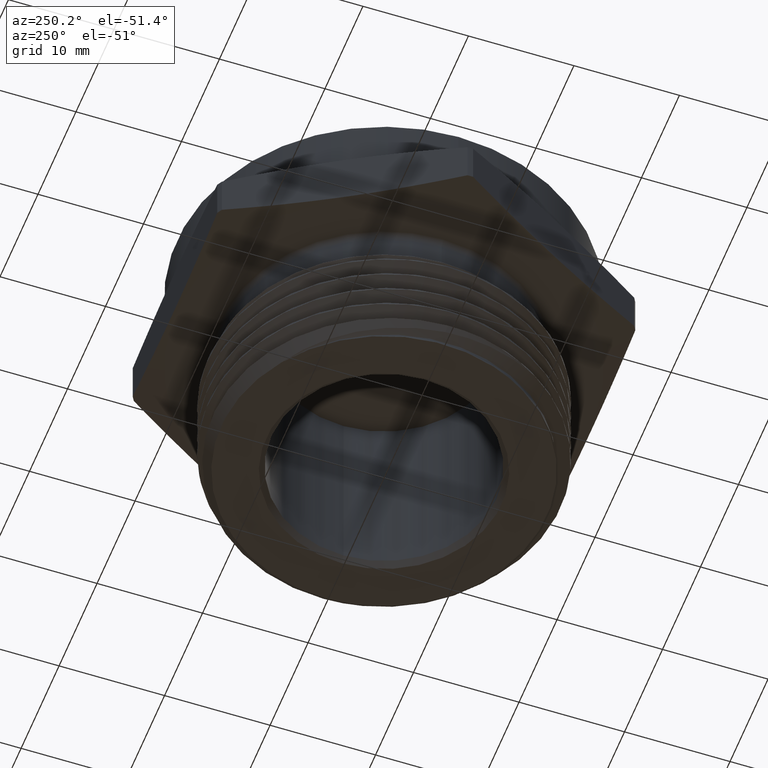
[diagram: clean part render]
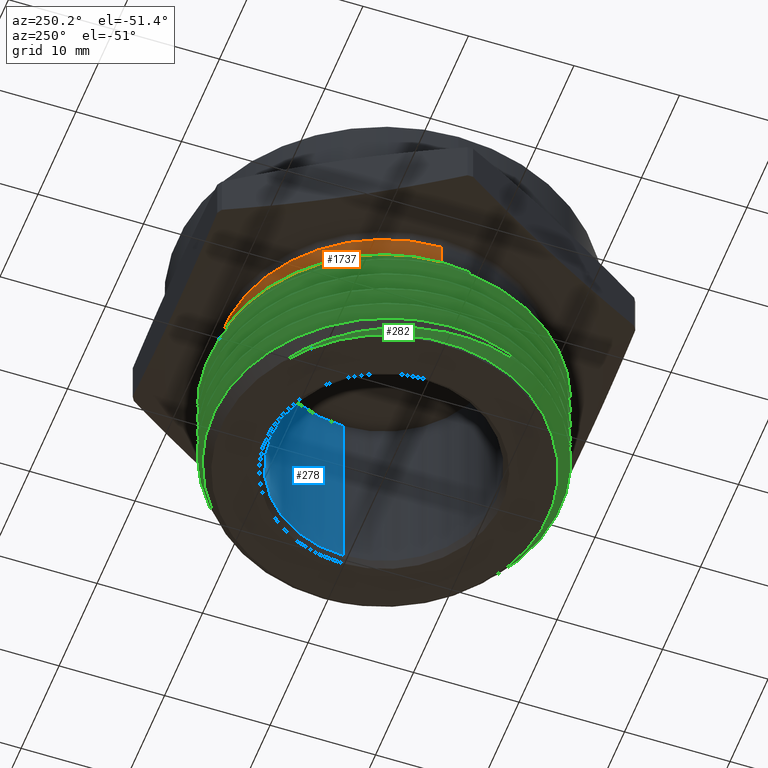
[diagram: same view with three faces highlighted in distinct colors, each labeled with its STEP entity id]
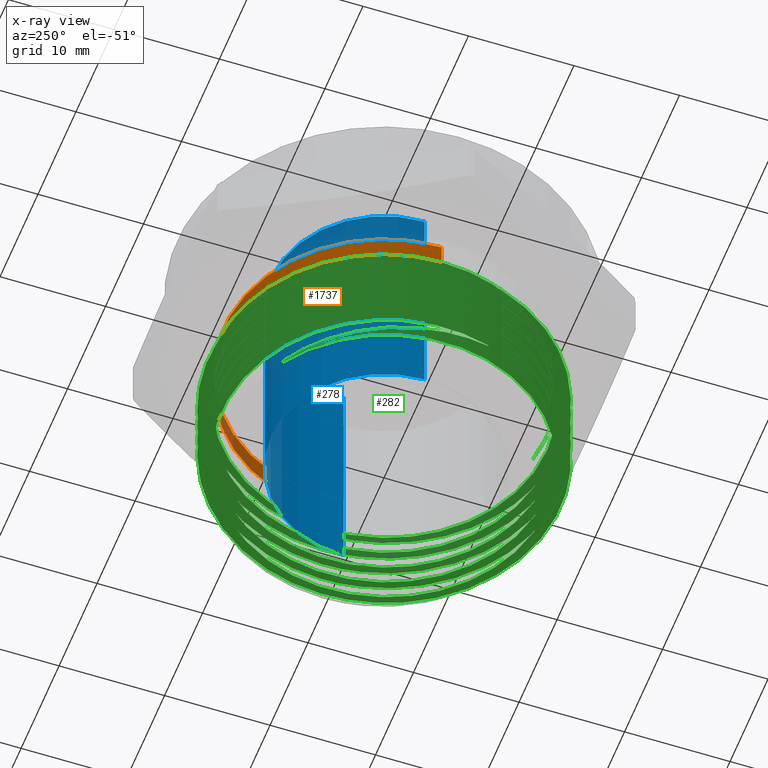
[diagram: x-ray of the same camera — body ghosted, the three highlighted faces saturated]
A machine part, auxiliary view with three faces highlighted in distinct colors.
The next image is the same camera in x-ray (body ghosted, the three faces saturated) — at least one of them is partly hidden behind the body in this view.
Their STEP definitions:

[orange] entity #1737 — the highlighted cylindrical surface (partial cylindrical patch) has radius 15.1765 mm, axis along (-0, -0, 1).
#127 = EDGE_LOOP ( 'NONE', ( #239, #240, #241, #242 ) ) ;
#151 = VERTEX_POINT ( 'NONE', #3338 ) ;
#239 = ORIENTED_EDGE ( 'NONE', *, *, #1875, .T. ) ;
#240 = ORIENTED_EDGE ( 'NONE', *, *, #1874, .T. ) ;
#241 = ORIENTED_EDGE ( 'NONE', *, *, #1873, .F. ) ;
#242 = ORIENTED_EDGE ( 'NONE', *, *, #1872, .F. ) ;
#816 = CARTESIAN_POINT ( 'NONE',  ( 0.5975000000000000300, 0.0000000000000000000, -0.02500000000000002900 ) ) ;
#841 = CARTESIAN_POINT ( 'NONE',  ( -0.5975000000000000300, 7.362100967769419200E-017, -0.1073223304703361800 ) ) ;
#846 = CARTESIAN_POINT ( 'NONE',  ( -0.5975000000000000300, 7.317264624905434600E-017, -0.02500000000000002900 ) ) ;
#1249 = DIRECTION ( 'NONE',  ( 1.000000000000000000, 0.0000000000000000000, 0.0000000000000000000 ) ) ;
#1251 = CARTESIAN_POINT ( 'NONE',  ( 0.0000000000000000000, 0.0000000000000000000, 0.0000000000000000000 ) ) ;
#1252 = DIRECTION ( 'NONE',  ( -0.0000000000000000000, -0.0000000000000000000, 1.000000000000000000 ) ) ;
#1737 = ADVANCED_FACE ( 'NONE', ( #2155 ), #2157, .T. ) ;
#1872 = EDGE_CURVE ( 'NONE', #151, #2062, #2262, .T. ) ;
#1873 = EDGE_CURVE ( 'NONE', #2062, #2092, #2264, .T. ) ;
#1874 = EDGE_CURVE ( 'NONE', #2087, #2092, #2263, .T. ) ;
#1875 = EDGE_CURVE ( 'NONE', #151, #2087, #2266, .T. ) ;
#2062 = VERTEX_POINT ( 'NONE', #816 ) ;
#2087 = VERTEX_POINT ( 'NONE', #841 ) ;
#2092 = VERTEX_POINT ( 'NONE', #846 ) ;
#2155 = FACE_OUTER_BOUND ( 'NONE', #127, .T. ) ;
#2157 = CYLINDRICAL_SURFACE ( 'NONE', #2404, 0.5975000000000000300 ) ;
#2262 = LINE ( 'NONE', #2600, #2265 ) ;
#2263 = LINE ( 'NONE', #2604, #2268 ) ;
#2264 = CIRCLE ( 'NONE', #2463, 0.5975000000000000300 ) ;
#2265 = VECTOR ( 'NONE', #2596, 39.37007874015748100 ) ;
#2266 = CIRCLE ( 'NONE', #2464, 0.5975000000000000300 ) ;
#2268 = VECTOR ( 'NONE', #2592, 39.37007874015748100 ) ;
#2404 = AXIS2_PLACEMENT_3D ( 'NONE', #1251, #1252, #1249 ) ;
#2463 = AXIS2_PLACEMENT_3D ( 'NONE', #2605, #2606, #2607 ) ;
#2464 = AXIS2_PLACEMENT_3D ( 'NONE', #2608, #2609, #2610 ) ;
#2592 = DIRECTION ( 'NONE',  ( -0.0000000000000000000, -0.0000000000000000000, 1.000000000000000000 ) ) ;
#2596 = DIRECTION ( 'NONE',  ( -0.0000000000000000000, -0.0000000000000000000, 1.000000000000000000 ) ) ;
#2600 = CARTESIAN_POINT ( 'NONE',  ( 0.5975000000000000300, 0.0000000000000000000, 0.0000000000000000000 ) ) ;
#2604 = CARTESIAN_POINT ( 'NONE',  ( -0.5975000000000000300, 7.317264624905434600E-017, 0.0000000000000000000 ) ) ;
#2605 = CARTESIAN_POINT ( 'NONE',  ( 0.0000000000000000000, 0.0000000000000000000, -0.02500000000000002900 ) ) ;
#2606 = DIRECTION ( 'NONE',  ( -0.0000000000000000000, -0.0000000000000000000, 1.000000000000000000 ) ) ;
#2607 = DIRECTION ( 'NONE',  ( 1.000000000000000000, 0.0000000000000000000, 0.0000000000000000000 ) ) ;
#2608 = CARTESIAN_POINT ( 'NONE',  ( 0.0000000000000000000, 0.0000000000000000000, -0.1073223304703361800 ) ) ;
#2609 = DIRECTION ( 'NONE',  ( -0.0000000000000000000, -0.0000000000000000000, 1.000000000000000000 ) ) ;
#2610 = DIRECTION ( 'NONE',  ( 1.000000000000000000, 0.0000000000000000000, 0.0000000000000000000 ) ) ;
#3338 = CARTESIAN_POINT ( 'NONE',  ( 0.5975000000000000300, 0.0000000000000000000, -0.1073223304703361800 ) ) ;

[blue] entity #278 — the highlighted cylindrical surface (partial cylindrical patch) has radius 10.668 mm, axis along (-0, -0, 1).
#121 = ORIENTED_EDGE ( 'NONE', *, *, #1886, .F. ) ;
#173 = EDGE_LOOP ( 'NONE', ( #121, #3380, #3381, #3378 ) ) ;
#278 = ADVANCED_FACE ( 'NONE', ( #2134 ), #2138, .F. ) ;
#396 = CARTESIAN_POINT ( 'NONE',  ( 0.0000000000000000000, 0.0000000000000000000, 0.3279999999999999600 ) ) ;
#397 = DIRECTION ( 'NONE',  ( -0.0000000000000000000, -0.0000000000000000000, 1.000000000000000000 ) ) ;
#398 = DIRECTION ( 'NONE',  ( 1.000000000000000000, 0.0000000000000000000, 0.0000000000000000000 ) ) ;
#401 = CARTESIAN_POINT ( 'NONE',  ( 0.0000000000000000000, 0.0000000000000000000, -0.5599999999999999400 ) ) ;
#402 = DIRECTION ( 'NONE',  ( -0.0000000000000000000, -0.0000000000000000000, 1.000000000000000000 ) ) ;
#403 = DIRECTION ( 'NONE',  ( 1.000000000000000000, 0.0000000000000000000, 0.0000000000000000000 ) ) ;
#743 = CARTESIAN_POINT ( 'NONE',  ( 0.4200000000000001500, 0.0000000000000000000, 0.3279999999999999600 ) ) ;
#794 = CARTESIAN_POINT ( 'NONE',  ( -0.4200000000000001500, 5.143516556418885600E-017, 0.3279999999999999600 ) ) ;
#825 = CARTESIAN_POINT ( 'NONE',  ( 0.4200000000000001500, 0.0000000000000000000, -0.5599999999999999400 ) ) ;
#831 = CARTESIAN_POINT ( 'NONE',  ( -0.4200000000000001500, 5.143516556418885600E-017, -0.5599999999999999400 ) ) ;
#1884 = EDGE_CURVE ( 'NONE', #2071, #2044, #2276, .T. ) ;
#1886 = EDGE_CURVE ( 'NONE', #2077, #2057, #2280, .T. ) ;
#1975 = EDGE_CURVE ( 'NONE', #2044, #2057, #2364, .T. ) ;
#1976 = EDGE_CURVE ( 'NONE', #2071, #2077, #2366, .T. ) ;
#2044 = VERTEX_POINT ( 'NONE', #743 ) ;
#2057 = VERTEX_POINT ( 'NONE', #794 ) ;
#2071 = VERTEX_POINT ( 'NONE', #825 ) ;
#2077 = VERTEX_POINT ( 'NONE', #831 ) ;
#2134 = FACE_OUTER_BOUND ( 'NONE', #173, .T. ) ;
#2138 = CYLINDRICAL_SURFACE ( 'NONE', #2395, 0.4200000000000001500 ) ;
#2276 = LINE ( 'NONE', #2631, #2281 ) ;
#2280 = LINE ( 'NONE', #2638, #2284 ) ;
#2281 = VECTOR ( 'NONE', #2626, 39.37007874015748100 ) ;
#2284 = VECTOR ( 'NONE', #2635, 39.37007874015748100 ) ;
#2364 = CIRCLE ( 'NONE', #2500, 0.4200000000000001500 ) ;
#2366 = CIRCLE ( 'NONE', #2501, 0.4200000000000001500 ) ;
#2395 = AXIS2_PLACEMENT_3D ( 'NONE', #3166, #3171, #3161 ) ;
#2500 = AXIS2_PLACEMENT_3D ( 'NONE', #396, #397, #398 ) ;
#2501 = AXIS2_PLACEMENT_3D ( 'NONE', #401, #402, #403 ) ;
#2626 = DIRECTION ( 'NONE',  ( -0.0000000000000000000, -0.0000000000000000000, 1.000000000000000000 ) ) ;
#2631 = CARTESIAN_POINT ( 'NONE',  ( 0.4200000000000001500, 0.0000000000000000000, 0.4801438795369790700 ) ) ;
#2635 = DIRECTION ( 'NONE',  ( -0.0000000000000000000, -0.0000000000000000000, 1.000000000000000000 ) ) ;
#2638 = CARTESIAN_POINT ( 'NONE',  ( -0.4200000000000001500, 5.143516556418885600E-017, 0.4801438795369790700 ) ) ;
#3161 = DIRECTION ( 'NONE',  ( 1.000000000000000000, 0.0000000000000000000, 0.0000000000000000000 ) ) ;
#3166 = CARTESIAN_POINT ( 'NONE',  ( 0.0000000000000000000, 0.0000000000000000000, 0.4801438795369790700 ) ) ;
#3171 = DIRECTION ( 'NONE',  ( -0.0000000000000000000, -0.0000000000000000000, 1.000000000000000000 ) ) ;
#3378 = ORIENTED_EDGE ( 'NONE', *, *, #1975, .T. ) ;
#3380 = ORIENTED_EDGE ( 'NONE', *, *, #1976, .F. ) ;
#3381 = ORIENTED_EDGE ( 'NONE', *, *, #1884, .T. ) ;

[green] entity #282 — the highlighted face is a freeform B-spline surface patch.
#9 = B_SPLINE_CURVE_WITH_KNOTS ( 'NONE', 3,
 ( #322, #323, #354, #355, #356, #357, #358, #359, #360, #361, #362, #363, #364, #365, #366 ),
 .UNSPECIFIED., .F., .F.,
 ( 4, 2, 2, 1, 2, 2, 2, 4 ),
 ( 0.07860678096560223800, 0.08271374778990636700, 0.08476723120205843800, 0.08682071461421049500, 0.08887419802636256600, 0.08990093973243860900, 0.09092768143851463800, 0.09503464826281879400 ),
 .UNSPECIFIED. ) ;
#11 =( BOUNDED_CURVE ( )  B_SPLINE_CURVE ( 2, ( #399, #400, #405, #406, #407, #408, #409, #410, #411, #412, #413, #414, #415, #416, #417, #418, #419, #420, #421, #422, #423, #424, #425, #426, #427, #428, #429, #430, #431, #432, #433, #434, #435, #436, #437, #438, #439, #440, #441, #442, #443, #444, #445, #446, #447, #448, #449, #450, #451, #452, #453, #454, #455, #456, #457, #458, #459, #460, #461, #462, #463, #464, #465, #466, #467, #468, #469, #470, #471, #472, #473, #474, #475, #476, #477, #478, #479, #480, #481, #482, #483, #484, #485, #486, #487, #488, #489, #490, #491, #492, #493, #494, #495, #496, #497, #498, #499, #500, #501, #502, #503, #504, #505, #506, #507, #508, #509, #510, #511, #512, #513 ),
 .UNSPECIFIED., .F., .F. ) 
 B_SPLINE_CURVE_WITH_KNOTS ( ( 3, 2, 2, 2, 2, 2, 2, 2, 2, 2, 2, 2, 2, 2, 2, 2, 2, 2, 2, 2, 2, 2, 2, 2, 2, 2, 2, 2, 2, 2, 2, 2, 2, 2, 2, 2, 2, 2, 2, 2, 2, 2, 2, 2, 2, 2, 2, 2, 2, 2, 2, 2, 2, 2, 2, 3 ),
 ( 0.1205417353397868800, 0.1285714285714285600, 0.1428571428571428500, 0.1571428571428571400, 0.1714285714285714300, 0.1857142857142857200, 0.2000000000000000100, 0.2142857142857142700, 0.2285714285714285600, 0.2428571428571428500, 0.2571428571428571200, 0.2714285714285714100, 0.2857142857142857000, 0.2999999999999999900, 0.3142857142857142800, 0.3285714285714286300, 0.3428571428571428600, 0.3571428571428571500, 0.3714285714285714400, 0.3857142857142856800, 0.4000000000000000200, 0.4142857142857142600, 0.4285714285714284900, 0.4428571428571428400, 0.4571428571428570700, 0.4714285714285714200, 0.4857142857142856500, 0.5000000000000000000, 0.5142857142857142300, 0.5285714285714285800, 0.5428571428571428200, 0.5571428571428571600, 0.5714285714285714000, 0.5857142857142857400, 0.5999999999999999800, 0.6142857142857143200, 0.6285714285714285600, 0.6428571428571429000, 0.6571428571428571400, 0.6714285714285713700, 0.6857142857142857200, 0.6999999999999999600, 0.7142857142857143000, 0.7285714285714285400, 0.7428571428571428800, 0.7571428571428571200, 0.7714285714285714600, 0.7857142857142855900, 0.8000000000000000400, 0.8142857142857143900, 0.8285714285714286300, 0.8428571428571428600, 0.8571428571428571000, 0.8714285714285714400, 0.8857142857142855700, 0.8973191002225197100 ),
 .UNSPECIFIED. ) 
 CURVE ( )  GEOMETRIC_REPRESENTATION_ITEM ( )  RATIONAL_B_SPLINE_CURVE ( ( 0.9759054894038437000, 0.9724899188113560500, 1.000000000000000000, 0.9510565162951535300, 1.000000000000000000, 0.9510565162951535300, 1.000000000000000000, 0.9510565162951535300, 1.000000000000000000, 0.9510565162951535300, 1.000000000000000000, 0.9510565162951535300, 1.000000000000000000, 0.9510565162951535300, 1.000000000000000000, 0.9510565162951535300, 1.000000000000000000, 0.9510565162951535300, 1.000000000000000000, 0.9510565162951535300, 1.000000000000000000, 0.9510565162951535300, 1.000000000000000000, 0.9510565162951535300, 1.000000000000000000, 0.9510565162951535300, 1.000000000000000000, 0.9510565162951535300, 1.000000000000000000, 0.9510565162951535300, 1.000000000000000000, 0.9510565162951535300, 1.000000000000000000, 0.9510565162951535300, 1.000000000000000000, 0.9510565162951535300, 1.000000000000000000, 0.9510565162951535300, 1.000000000000000000, 0.9510565162951535300, 1.000000000000000000, 0.9510565162951535300, 1.000000000000000000, 0.9510565162951535300, 1.000000000000000000, 0.9510565162951535300, 1.000000000000000000, 0.9510565162951535300, 1.000000000000000000, 0.9510565162951535300, 1.000000000000000000, 0.9510565162951535300, 1.000000000000000000, 0.9510565162951535300, 1.000000000000000000, 0.9510565162951535300, 1.000000000000000000, 0.9510565162951535300, 1.000000000000000000, 0.9510565162951535300, 1.000000000000000000, 0.9510565162951535300, 1.000000000000000000, 0.9510565162951535300, 1.000000000000000000, 0.9510565162951535300, 1.000000000000000000, 0.9510565162951535300, 1.000000000000000000, 0.9510565162951535300, 1.000000000000000000, 0.9510565162951535300, 1.000000000000000000, 0.9510565162951535300, 1.000000000000000000, 0.9510565162951535300, 1.000000000000000000, 0.9510565162951535300, 1.000000000000000000, 0.9510565162951535300, 1.000000000000000000, 0.9510565162951535300, 1.000000000000000000, 0.9510565162951535300, 1.000000000000000000, 0.9510565162951535300, 1.000000000000000000, 0.9510565162951535300, 1.000000000000000000, 0.9510565162951535300, 1.000000000000000000, 0.9510565162951535300, 1.000000000000000000, 0.9510565162951535300, 1.000000000000000000, 0.9510565162951535300, 1.000000000000000000, 0.9510565162951535300, 1.000000000000000000, 0.9510565162951535300, 1.000000000000000000, 0.9510565162951535300, 1.000000000000000000, 0.9510565162951535300, 1.000000000000000000, 0.9510565162951535300, 1.000000000000000000, 0.9510565162951535300, 1.000000000000000000, 0.9602413965152942800, 0.9850775636270887600 ) ) 
 REPRESENTATION_ITEM ( '' )  );
#14 = B_SPLINE_CURVE_WITH_KNOTS ( 'NONE', 3,
 ( #627, #626, #630, #631, #632, #633, #634, #635, #636, #637, #638, #639, #640, #641 ),
 .UNSPECIFIED., .F., .F.,
 ( 4, 2, 2, 2, 2, 2, 4 ),
 ( 0.0000000000000000000, 0.002463313587235845400, 0.003694970380853768300, 0.004926627174471690800, 0.006158283968089613300, 0.007389940761707536700, 0.009853254348943381700 ),
 .UNSPECIFIED. ) ;
#16 = B_SPLINE_CURVE_WITH_KNOTS ( 'NONE', 3,
 ( #652, #667, #673, #674, #675, #676, #677, #678, #679, #680, #681, #682, #683, #684, #685, #686, #687, #688, #689, #690, #691, #692, #693, #694, #695, #696, #697, #698, #699, #700 ),
 .UNSPECIFIED., .F., .F.,
 ( 4, 2, 2, 2, 2, 2, 2, 2, 2, 2, 2, 2, 2, 2, 4 ),
 ( 0.0000000000000000000, 0.001731086439750013000, 0.003462172879500026100, 0.006924345759000052200, 0.007789888978875056600, 0.008655432198750060900, 0.01038651863850007300, 0.01211760507825008000, 0.01384869151800008900, 0.01731086439750010400, 0.01904195083725011100, 0.02077303727700011800, 0.02250412371675012500, 0.02423521015650013200, 0.02769738303600014600 ),
 .UNSPECIFIED. ) ;
#19 = B_SPLINE_CURVE_WITH_KNOTS ( 'NONE', 3,
 ( #738, #739, #744, #745, #746, #747, #748, #749, #750, #751, #752, #753, #754, #755, #756, #757, #758, #759, #760, #761, #762, #763, #764, #765, #766, #767, #768, #769, #770, #771, #772, #773, #774, #775, #776, #777, #778, #779, #780, #781, #782, #783, #784, #785, #786, #787, #788, #789, #790, #791, #792, #793 ),
 .UNSPECIFIED., .F., .F.,
 ( 4, 2, 2, 2, 2, 2, 2, 2, 2, 2, 2, 2, 2, 2, 2, 2, 2, 2, 2, 2, 2, 2, 2, 2, 2, 4 ),
 ( 0.02769738303600014600, 0.02928830172130021300, 0.03087922040660027700, 0.03406105777720040700, 0.03565197646250047000, 0.03724289514780053400, 0.03883381383310059700, 0.04042473251840066100, 0.04360656988900078700, 0.04519748857430085100, 0.04678840725960091400, 0.04997024463020104800, 0.05156116331550111800, 0.05315208200080118200, 0.05633391937140130900, 0.05951575674200144200, 0.06110667542730151300, 0.06269759411260157600, 0.06587943148320171700, 0.06747035016850178000, 0.06906126885380184400, 0.07224310622440197100, 0.07383402490970203400, 0.07542494359500209700, 0.07701586228030217500, 0.07860678096560223800 ),
 .UNSPECIFIED. ) ;
#97 = ORIENTED_EDGE ( 'NONE', *, *, #1977, .T. ) ;
#98 = ORIENTED_EDGE ( 'NONE', *, *, #1990, .T. ) ;
#99 = ORIENTED_EDGE ( 'NONE', *, *, #1998, .T. ) ;
#100 = ORIENTED_EDGE ( 'NONE', *, *, #1971, .T. ) ;
#101 = ORIENTED_EDGE ( 'NONE', *, *, #1939, .F. ) ;
#102 = ORIENTED_EDGE ( 'NONE', *, *, #1914, .F. ) ;
#103 = ORIENTED_EDGE ( 'NONE', *, *, #1937, .F. ) ;
#104 = ORIENTED_EDGE ( 'NONE', *, *, #1926, .F. ) ;
#105 = ORIENTED_EDGE ( 'NONE', *, *, #1935, .F. ) ;
#106 = ORIENTED_EDGE ( 'NONE', *, *, #1922, .F. ) ;
#107 = ORIENTED_EDGE ( 'NONE', *, *, #1933, .F. ) ;
#108 = ORIENTED_EDGE ( 'NONE', *, *, #1918, .F. ) ;
#158 = VERTEX_POINT ( 'NONE', #3341 ) ;
#161 = VERTEX_POINT ( 'NONE', #3334 ) ;
#162 = VERTEX_POINT ( 'NONE', #3333 ) ;
#164 = EDGE_LOOP ( 'NONE', ( #3048, #3049, #3050, #97, #98, #99, #100, #101, #102, #103, #104, #105, #106, #107, #108 ) ) ;
#282 = ADVANCED_FACE ( 'NONE', ( #2144 ), #1786, .F. ) ;
#322 = CARTESIAN_POINT ( 'NONE',  ( 0.6479485234955750800, 1.019868917283024600E-012, -0.1681261930252378700 ) ) ;
#323 = CARTESIAN_POINT ( 'NONE',  ( 0.6486263209183719100, -0.05402015691109028600, -0.1688039904479501900 ) ) ;
#354 = CARTESIAN_POINT ( 'NONE',  ( 0.6426644382748188900, -0.1070790334679271500, -0.1694947203800030400 ) ) ;
#355 = CARTESIAN_POINT ( 'NONE',  ( 0.6240028884823479700, -0.1852602952838136600, -0.1705493056472958400 ) ) ;
#356 = CARTESIAN_POINT ( 'NONE',  ( 0.6160689244940128500, -0.2112558655483529600, -0.1709064093236781200 ) ) ;
#357 = CARTESIAN_POINT ( 'NONE',  ( 0.5972102256199143300, -0.2615859396813071100, -0.1716108508783373000 ) ) ;
#358 = CARTESIAN_POINT ( 'NONE',  ( 0.5753865485408029600, -0.3103737744112253200, -0.1723069279843588400 ) ) ;
#359 = CARTESIAN_POINT ( 'NONE',  ( 0.5477624162662725300, -0.3561444890950350400, -0.1729867485939529400 ) ) ;
#360 = CARTESIAN_POINT ( 'NONE',  ( 0.5248170316476717900, -0.3893139963829352300, -0.1734904487309118800 ) ) ;
#361 = CARTESIAN_POINT ( 'NONE',  ( 0.5167681835133430800, -0.4002133966489325200, -0.1736592372198634800 ) ) ;
#362 = CARTESIAN_POINT ( 'NONE',  ( 0.5000775485880754000, -0.4214118619769510700, -0.1739999335881959300 ) ) ;
#363 = CARTESIAN_POINT ( 'NONE',  ( 0.4914427834252208000, -0.4317065357377491400, -0.1741708718599552200 ) ) ;
#364 = CARTESIAN_POINT ( 'NONE',  ( 0.4468517247149863500, -0.4816886826516208500, -0.1750284249788911000 ) ) ;
#365 = CARTESIAN_POINT ( 'NONE',  ( 0.4067075489647600200, -0.5169696388218676400, -0.1757234666414185000 ) ) ;
#366 = CARTESIAN_POINT ( 'NONE',  ( 0.3619571796122916200, -0.5474039300435423700, -0.1764276695296617700 ) ) ;
#399 = CARTESIAN_POINT ( 'NONE',  ( -0.3370093885856370000, 0.5044292760190817200, -0.5799999999999999600 ) ) ;
#400 = CARTESIAN_POINT ( 'NONE',  ( -0.4271031116061191900, 0.4442376258631665600, -0.5775936169182226400 ) ) ;
#405 = CARTESIAN_POINT ( 'NONE',  ( -0.4907901617291762200, 0.3565799204243685300, -0.5753032399406747800 ) ) ;
#406 = CARTESIAN_POINT ( 'NONE',  ( -0.6066500011562159200, 0.1971125301612256800, -0.5711365732740081300 ) ) ;
#407 = CARTESIAN_POINT ( 'NONE',  ( -0.6066499999999999100, -3.558467075867448100E-009, -0.5669699066073414800 ) ) ;
#408 = CARTESIAN_POINT ( 'NONE',  ( -0.6066499988437839000, -0.1971125372781596400, -0.5628032399406748300 ) ) ;
#409 = CARTESIAN_POINT ( 'NONE',  ( -0.4907901575459472900, -0.3565799261820891100, -0.5586365732740081700 ) ) ;
#410 = CARTESIAN_POINT ( 'NONE',  ( -0.3749303162481107400, -0.5160473150860185300, -0.5544699066073416300 ) ) ;
#411 = CARTESIAN_POINT ( 'NONE',  ( -0.1874651562532585200, -0.5769584367100816200, -0.5503032399406747600 ) ) ;
#412 = CARTESIAN_POINT ( 'NONE',  ( 3.741593667411983200E-009, -0.6378695583341447200, -0.5461365732740082200 ) ) ;
#413 = CARTESIAN_POINT ( 'NONE',  ( 0.1874651630218650800, -0.5769584345108280700, -0.5419699066073415700 ) ) ;
#414 = CARTESIAN_POINT ( 'NONE',  ( 0.3749303223021364700, -0.5160473106875114200, -0.5378032399406749200 ) ) ;
#415 = CARTESIAN_POINT ( 'NONE',  ( 0.4907901617291762200, -0.3565799204243684800, -0.5336365732740081500 ) ) ;
#416 = CARTESIAN_POINT ( 'NONE',  ( 0.6066500011562159200, -0.1971125301612256000, -0.5294699066073415000 ) ) ;
#417 = CARTESIAN_POINT ( 'NONE',  ( 0.6066499999999999100, 3.558467001574249900E-009, -0.5253032399406748500 ) ) ;
#418 = CARTESIAN_POINT ( 'NONE',  ( 0.6066499988437841200, 0.1971125372781595600, -0.5211365732740082000 ) ) ;
#419 = CARTESIAN_POINT ( 'NONE',  ( 0.4907901575459472900, 0.3565799261820890600, -0.5169699066073415400 ) ) ;
#420 = CARTESIAN_POINT ( 'NONE',  ( 0.3749303162481107400, 0.5160473150860185300, -0.5128032399406747800 ) ) ;
#421 = CARTESIAN_POINT ( 'NONE',  ( 0.1874651562532586000, 0.5769584367100816200, -0.5086365732740082400 ) ) ;
#422 = CARTESIAN_POINT ( 'NONE',  ( -3.741593589295492100E-009, 0.6378695583341447200, -0.5044699066073414800 ) ) ;
#423 = CARTESIAN_POINT ( 'NONE',  ( -0.1874651630218650000, 0.5769584345108280700, -0.5003032399406748300 ) ) ;
#424 = CARTESIAN_POINT ( 'NONE',  ( -0.3749303223021363500, 0.5160473106875115300, -0.4961365732740080600 ) ) ;
#425 = CARTESIAN_POINT ( 'NONE',  ( -0.4907901617291762200, 0.3565799204243685300, -0.4919699066073415200 ) ) ;
#426 = CARTESIAN_POINT ( 'NONE',  ( -0.6066500011562159200, 0.1971125301612256800, -0.4878032399406748200 ) ) ;
#427 = CARTESIAN_POINT ( 'NONE',  ( -0.6066499999999999100, -3.558467075867448100E-009, -0.4836365732740082200 ) ) ;
#428 = CARTESIAN_POINT ( 'NONE',  ( -0.6066499988437839000, -0.1971125372781596400, -0.4794699066073414600 ) ) ;
#429 = CARTESIAN_POINT ( 'NONE',  ( -0.4907901575459472900, -0.3565799261820891100, -0.4753032399406748600 ) ) ;
#430 = CARTESIAN_POINT ( 'NONE',  ( -0.3749303162481107400, -0.5160473150860185300, -0.4711365732740081500 ) ) ;
#431 = CARTESIAN_POINT ( 'NONE',  ( -0.1874651562532585200, -0.5769584367100816200, -0.4669699066073415000 ) ) ;
#432 = CARTESIAN_POINT ( 'NONE',  ( 3.741593667411983200E-009, -0.6378695583341447200, -0.4628032399406748500 ) ) ;
#433 = CARTESIAN_POINT ( 'NONE',  ( 0.1874651630218650800, -0.5769584345108280700, -0.4586365732740082000 ) ) ;
#434 = CARTESIAN_POINT ( 'NONE',  ( 0.3749303223021364700, -0.5160473106875114200, -0.4544699066073415400 ) ) ;
#435 = CARTESIAN_POINT ( 'NONE',  ( 0.4907901617291762200, -0.3565799204243684800, -0.4503032399406748400 ) ) ;
#436 = CARTESIAN_POINT ( 'NONE',  ( 0.6066500011562159200, -0.1971125301612256000, -0.4461365732740081300 ) ) ;
#437 = CARTESIAN_POINT ( 'NONE',  ( 0.6066499999999999100, 3.558467001574249900E-009, -0.4419699066073414800 ) ) ;
#438 = CARTESIAN_POINT ( 'NONE',  ( 0.6066499988437841200, 0.1971125372781595600, -0.4378032399406748300 ) ) ;
#439 = CARTESIAN_POINT ( 'NONE',  ( 0.4907901575459472900, 0.3565799261820890600, -0.4336365732740082300 ) ) ;
#440 = CARTESIAN_POINT ( 'NONE',  ( 0.3749303162481107400, 0.5160473150860185300, -0.4294699066073415800 ) ) ;
#441 = CARTESIAN_POINT ( 'NONE',  ( 0.1874651562532586000, 0.5769584367100816200, -0.4253032399406748700 ) ) ;
#442 = CARTESIAN_POINT ( 'NONE',  ( -3.741593589295492100E-009, 0.6378695583341447200, -0.4211365732740081100 ) ) ;
#443 = CARTESIAN_POINT ( 'NONE',  ( -0.1874651630218650000, 0.5769584345108280700, -0.4169699066073415100 ) ) ;
#444 = CARTESIAN_POINT ( 'NONE',  ( -0.3749303223021363500, 0.5160473106875115300, -0.4128032399406747500 ) ) ;
#445 = CARTESIAN_POINT ( 'NONE',  ( -0.4907901617291762200, 0.3565799204243685300, -0.4086365732740082100 ) ) ;
#446 = CARTESIAN_POINT ( 'NONE',  ( -0.6066500011562159200, 0.1971125301612256800, -0.4044699066073415000 ) ) ;
#447 = CARTESIAN_POINT ( 'NONE',  ( -0.6066499999999999100, -3.558467075867448100E-009, -0.4003032399406748500 ) ) ;
#448 = CARTESIAN_POINT ( 'NONE',  ( -0.6066499988437839000, -0.1971125372781596400, -0.3961365732740081400 ) ) ;
#449 = CARTESIAN_POINT ( 'NONE',  ( -0.4907901575459472900, -0.3565799261820891100, -0.3919699066073414900 ) ) ;
#450 = CARTESIAN_POINT ( 'NONE',  ( -0.3749303162481107400, -0.5160473150860185300, -0.3878032399406748400 ) ) ;
#451 = CARTESIAN_POINT ( 'NONE',  ( -0.1874651562532585200, -0.5769584367100816200, -0.3836365732740081900 ) ) ;
#452 = CARTESIAN_POINT ( 'NONE',  ( 3.741593667411983200E-009, -0.6378695583341447200, -0.3794699066073415300 ) ) ;
#453 = CARTESIAN_POINT ( 'NONE',  ( 0.1874651630218650800, -0.5769584345108280700, -0.3753032399406748800 ) ) ;
#454 = CARTESIAN_POINT ( 'NONE',  ( 0.3749303223021364700, -0.5160473106875114200, -0.3711365732740081700 ) ) ;
#455 = CARTESIAN_POINT ( 'NONE',  ( 0.4907901617291762200, -0.3565799204243684800, -0.3669699066073415200 ) ) ;
#456 = CARTESIAN_POINT ( 'NONE',  ( 0.6066500011562159200, -0.1971125301612256000, -0.3628032399406748200 ) ) ;
#457 = CARTESIAN_POINT ( 'NONE',  ( 0.6066499999999999100, 3.558467001574249900E-009, -0.3586365732740081600 ) ) ;
#458 = CARTESIAN_POINT ( 'NONE',  ( 0.6066499988437841200, 0.1971125372781595600, -0.3544699066073415700 ) ) ;
#459 = CARTESIAN_POINT ( 'NONE',  ( 0.4907901575459472900, 0.3565799261820890600, -0.3503032399406749200 ) ) ;
#460 = CARTESIAN_POINT ( 'NONE',  ( 0.3749303162481107400, 0.5160473150860185300, -0.3461365732740082100 ) ) ;
#461 = CARTESIAN_POINT ( 'NONE',  ( 0.1874651562532586000, 0.5769584367100816200, -0.3419699066073415600 ) ) ;
#462 = CARTESIAN_POINT ( 'NONE',  ( -3.741593589295492100E-009, 0.6378695583341447200, -0.3378032399406749000 ) ) ;
#463 = CARTESIAN_POINT ( 'NONE',  ( -0.1874651630218650000, 0.5769584345108280700, -0.3336365732740082000 ) ) ;
#464 = CARTESIAN_POINT ( 'NONE',  ( -0.3749303223021363500, 0.5160473106875115300, -0.3294699066073414900 ) ) ;
#465 = CARTESIAN_POINT ( 'NONE',  ( -0.4907901617291762200, 0.3565799204243685300, -0.3253032399406748900 ) ) ;
#466 = CARTESIAN_POINT ( 'NONE',  ( -0.6066500011562159200, 0.1971125301612256800, -0.3211365732740081900 ) ) ;
#467 = CARTESIAN_POINT ( 'NONE',  ( -0.6066499999999999100, -3.558467075867448100E-009, -0.3169699066073415300 ) ) ;
#468 = CARTESIAN_POINT ( 'NONE',  ( -0.6066499988437839000, -0.1971125372781596400, -0.3128032399406748800 ) ) ;
#469 = CARTESIAN_POINT ( 'NONE',  ( -0.4907901575459472900, -0.3565799261820891100, -0.3086365732740081700 ) ) ;
#470 = CARTESIAN_POINT ( 'NONE',  ( -0.3749303162481107400, -0.5160473150860185300, -0.3044699066073414700 ) ) ;
#471 = CARTESIAN_POINT ( 'NONE',  ( -0.1874651562532585200, -0.5769584367100816200, -0.3003032399406748700 ) ) ;
#472 = CARTESIAN_POINT ( 'NONE',  ( 3.741593667411983200E-009, -0.6378695583341447200, -0.2961365732740081100 ) ) ;
#473 = CARTESIAN_POINT ( 'NONE',  ( 0.1874651630218650800, -0.5769584345108280700, -0.2919699066073415100 ) ) ;
#474 = CARTESIAN_POINT ( 'NONE',  ( 0.3749303223021364700, -0.5160473106875114200, -0.2878032399406748600 ) ) ;
#475 = CARTESIAN_POINT ( 'NONE',  ( 0.4907901617291762200, -0.3565799204243684800, -0.2836365732740081500 ) ) ;
#476 = CARTESIAN_POINT ( 'NONE',  ( 0.6066500011562159200, -0.1971125301612256000, -0.2794699066073415000 ) ) ;
#477 = CARTESIAN_POINT ( 'NONE',  ( 0.6066499999999999100, 3.558467001574249900E-009, -0.2753032399406748500 ) ) ;
#478 = CARTESIAN_POINT ( 'NONE',  ( 0.6066499988437841200, 0.1971125372781595600, -0.2711365732740082500 ) ) ;
#479 = CARTESIAN_POINT ( 'NONE',  ( 0.4907901575459472900, 0.3565799261820890600, -0.2669699066073414900 ) ) ;
#480 = CARTESIAN_POINT ( 'NONE',  ( 0.3749303162481107400, 0.5160473150860185300, -0.2628032399406748400 ) ) ;
#481 = CARTESIAN_POINT ( 'NONE',  ( 0.1874651562532586000, 0.5769584367100816200, -0.2586365732740082400 ) ) ;
#482 = CARTESIAN_POINT ( 'NONE',  ( -3.741593589295492100E-009, 0.6378695583341447200, -0.2544699066073414800 ) ) ;
#483 = CARTESIAN_POINT ( 'NONE',  ( -0.1874651630218650000, 0.5769584345108280700, -0.2503032399406748800 ) ) ;
#484 = CARTESIAN_POINT ( 'NONE',  ( -0.3749303223021363500, 0.5160473106875115300, -0.2461365732740082000 ) ) ;
#485 = CARTESIAN_POINT ( 'NONE',  ( -0.4907901617291762200, 0.3565799204243685300, -0.2419699066073415200 ) ) ;
#486 = CARTESIAN_POINT ( 'NONE',  ( -0.6066500011562159200, 0.1971125301612256800, -0.2378032399406748700 ) ) ;
#487 = CARTESIAN_POINT ( 'NONE',  ( -0.6066499999999999100, -3.558467075867448100E-009, -0.2336365732740082200 ) ) ;
#488 = CARTESIAN_POINT ( 'NONE',  ( -0.6066499988437839000, -0.1971125372781596400, -0.2294699066073415100 ) ) ;
#489 = CARTESIAN_POINT ( 'NONE',  ( -0.4907901575459472900, -0.3565799261820891100, -0.2253032399406748600 ) ) ;
#490 = CARTESIAN_POINT ( 'NONE',  ( -0.3749303162481107400, -0.5160473150860185300, -0.2211365732740082100 ) ) ;
#491 = CARTESIAN_POINT ( 'NONE',  ( -0.1874651562532585200, -0.5769584367100816200, -0.2169699066073415800 ) ) ;
#492 = CARTESIAN_POINT ( 'NONE',  ( 3.741593667411983200E-009, -0.6378695583341447200, -0.2128032399406748200 ) ) ;
#493 = CARTESIAN_POINT ( 'NONE',  ( 0.1874651630218650800, -0.5769584345108280700, -0.2086365732740082200 ) ) ;
#494 = CARTESIAN_POINT ( 'NONE',  ( 0.3749303223021364700, -0.5160473106875114200, -0.2044699066073415400 ) ) ;
#495 = CARTESIAN_POINT ( 'NONE',  ( 0.4907901617291762200, -0.3565799204243684800, -0.2003032399406748700 ) ) ;
#496 = CARTESIAN_POINT ( 'NONE',  ( 0.6066500011562159200, -0.1971125301612256000, -0.1961365732740082100 ) ) ;
#497 = CARTESIAN_POINT ( 'NONE',  ( 0.6066499999999999100, 3.558467001574249900E-009, -0.1919699066073415600 ) ) ;
#498 = CARTESIAN_POINT ( 'NONE',  ( 0.6066499988437841200, 0.1971125372781595600, -0.1878032399406748500 ) ) ;
#499 = CARTESIAN_POINT ( 'NONE',  ( 0.4907901575459472900, 0.3565799261820890600, -0.1836365732740082000 ) ) ;
#500 = CARTESIAN_POINT ( 'NONE',  ( 0.3749303162481107400, 0.5160473150860185300, -0.1794699066073415500 ) ) ;
#501 = CARTESIAN_POINT ( 'NONE',  ( 0.1874651562532586000, 0.5769584367100816200, -0.1753032399406748400 ) ) ;
#502 = CARTESIAN_POINT ( 'NONE',  ( -3.741593589295492100E-009, 0.6378695583341447200, -0.1711365732740081600 ) ) ;
#503 = CARTESIAN_POINT ( 'NONE',  ( -0.1874651630218650000, 0.5769584345108280700, -0.1669699066073415700 ) ) ;
#504 = CARTESIAN_POINT ( 'NONE',  ( -0.3749303223021363500, 0.5160473106875115300, -0.1628032399406748300 ) ) ;
#505 = CARTESIAN_POINT ( 'NONE',  ( -0.4907901617291762200, 0.3565799204243685300, -0.1586365732740082100 ) ) ;
#506 = CARTESIAN_POINT ( 'NONE',  ( -0.6066500011562159200, 0.1971125301612256800, -0.1544699066073415600 ) ) ;
#507 = CARTESIAN_POINT ( 'NONE',  ( -0.6066499999999999100, -3.558467075867448100E-009, -0.1503032399406748500 ) ) ;
#508 = CARTESIAN_POINT ( 'NONE',  ( -0.6066499988437839000, -0.1971125372781596400, -0.1461365732740082000 ) ) ;
#509 = CARTESIAN_POINT ( 'NONE',  ( -0.4907901575459472900, -0.3565799261820891100, -0.1419699066073415400 ) ) ;
#510 = CARTESIAN_POINT ( 'NONE',  ( -0.3749303162481107400, -0.5160473150860185300, -0.1378032399406749200 ) ) ;
#511 = CARTESIAN_POINT ( 'NONE',  ( -0.1874651562532585200, -0.5769584367100816200, -0.1336365732740081900 ) ) ;
#512 = CARTESIAN_POINT ( 'NONE',  ( -0.03663689977845444700, -0.6259655070090879300, -0.1302842113275949600 ) ) ;
#513 = CARTESIAN_POINT ( 'NONE',  ( 0.1188785784317565500, -0.5948883139632552600, -0.1268276695295267300 ) ) ;
#626 = CARTESIAN_POINT ( 'NONE',  ( -0.5596014470127183000, -0.3414342170335835100, -0.5319121233591351800 ) ) ;
#627 = CARTESIAN_POINT ( 'NONE',  ( -0.5426331996063145100, -0.3690708240771865500, -0.5304000000000013100 ) ) ;
#630 = CARTESIAN_POINT ( 'NONE',  ( -0.5743845241180303200, -0.3127212644721530900, -0.5334512617345783500 ) ) ;
#631 = CARTESIAN_POINT ( 'NONE',  ( -0.5933069780986893700, -0.2680500226262018700, -0.5358020222751322900 ) ) ;
#632 = CARTESIAN_POINT ( 'NONE',  ( -0.5990752708832074400, -0.2528692103927501800, -0.5365937647017813300 ) ) ;
#633 = CARTESIAN_POINT ( 'NONE',  ( -0.6094202262840766600, -0.2222240271258360000, -0.5381782413722159300 ) ) ;
#634 = CARTESIAN_POINT ( 'NONE',  ( -0.6140102729802330300, -0.2067324416764793600, -0.5389724276020355600 ) ) ;
#635 = CARTESIAN_POINT ( 'NONE',  ( -0.6220269438172653100, -0.1754117056072786200, -0.5405647847851311500 ) ) ;
#636 = CARTESIAN_POINT ( 'NONE',  ( -0.6254613960771191500, -0.1595318273635082900, -0.5413654805292139600 ) ) ;
#637 = CARTESIAN_POINT ( 'NONE',  ( -0.6311010077550546200, -0.1277241452491125500, -0.5429562153375828700 ) ) ;
#638 = CARTESIAN_POINT ( 'NONE',  ( -0.6333103303761042900, -0.1118016904449888700, -0.5437460406301569700 ) ) ;
#639 = CARTESIAN_POINT ( 'NONE',  ( -0.6381507329202552600, -0.06397981542134750800, -0.5460991367487608700 ) ) ;
#640 = CARTESIAN_POINT ( 'NONE',  ( -0.6390038337722518900, -0.03202617938579688900, -0.5476461662277499800 ) ) ;
#641 = CARTESIAN_POINT ( 'NONE',  ( -0.6374795318027412000, -5.998769797697162300E-015, -0.5491704681972592300 ) ) ;
#652 = CARTESIAN_POINT ( 'NONE',  ( 0.1188785784317565500, -0.5948883139632552600, -0.1268276695295267300 ) ) ;
#667 = CARTESIAN_POINT ( 'NONE',  ( 0.09655907665012625200, -0.5996701057687183800, -0.1271430431749499000 ) ) ;
#673 = CARTESIAN_POINT ( 'NONE',  ( 0.07409496867627954300, -0.6031730362002023500, -0.1274599668529050300 ) ) ;
#674 = CARTESIAN_POINT ( 'NONE',  ( 0.02888163828196107700, -0.6076574208885171500, -0.1280968276837876600 ) ) ;
#675 = CARTESIAN_POINT ( 'NONE',  ( 0.006025462085934748600, -0.6086351695451983600, -0.1284182657639088800 ) ) ;
#676 = CARTESIAN_POINT ( 'NONE',  ( -0.06215193208264535600, -0.6077211743504704600, -0.1293755658182471600 ) ) ;
#677 = CARTESIAN_POINT ( 'NONE',  ( -0.1068214315978682800, -0.6020896018031488600, -0.1300007788542556800 ) ) ;
#678 = CARTESIAN_POINT ( 'NONE',  ( -0.1617000554684794000, -0.5888967410887240300, -0.1307666265761102400 ) ) ;
#679 = CARTESIAN_POINT ( 'NONE',  ( -0.1726273071524382900, -0.5859468996498510300, -0.1309190047606461300 ) ) ;
#680 = CARTESIAN_POINT ( 'NONE',  ( -0.1943830653309014700, -0.5794131268918018000, -0.1312221604447859900 ) ) ;
#681 = CARTESIAN_POINT ( 'NONE',  ( -0.2052417968792705800, -0.5758182541270310300, -0.1313745473910391300 ) ) ;
#682 = CARTESIAN_POINT ( 'NONE',  ( -0.2373103697092991100, -0.5642027751045178800, -0.1318344762020333400 ) ) ;
#683 = CARTESIAN_POINT ( 'NONE',  ( -0.2580899451252610700, -0.5553361499497165800, -0.1321430894678482800 ) ) ;
#684 = CARTESIAN_POINT ( 'NONE',  ( -0.2984845719985787500, -0.5354214350191755000, -0.1327641277407083700 ) ) ;
#685 = CARTESIAN_POINT ( 'NONE',  ( -0.3180995461962677400, -0.5243732005198923400, -0.1330765531524418200 ) ) ;
#686 = CARTESIAN_POINT ( 'NONE',  ( -0.3561560081250134100, -0.5000784769151466200, -0.1337052174275707200 ) ) ;
#687 = CARTESIAN_POINT ( 'NONE',  ( -0.3746889607588149200, -0.4867563318028470000, -0.1340231030848125200 ) ) ;
#688 = CARTESIAN_POINT ( 'NONE',  ( -0.4277865395891745600, -0.4438903377595602700, -0.1349708421798461200 ) ) ;
#689 = CARTESIAN_POINT ( 'NONE',  ( -0.4594692744894653400, -0.4118888922136568200, -0.1355869083837621100 ) ) ;
#690 = CARTESIAN_POINT ( 'NONE',  ( -0.5015544202790437300, -0.3588745213290187000, -0.1364882835426851900 ) ) ;
#691 = CARTESIAN_POINT ( 'NONE',  ( -0.5147191279335814300, -0.3402798386870583000, -0.1367877102402436100 ) ) ;
#692 = CARTESIAN_POINT ( 'NONE',  ( -0.5389329942339513600, -0.3017195829605826600, -0.1374015122669529600 ) ) ;
#693 = CARTESIAN_POINT ( 'NONE',  ( -0.5498774201105708400, -0.2819357704915975100, -0.1377096190295937500 ) ) ;
#694 = CARTESIAN_POINT ( 'NONE',  ( -0.5695145850588682100, -0.2413925466229585000, -0.1383281180314246700 ) ) ;
#695 = CARTESIAN_POINT ( 'NONE',  ( -0.5782071334561936800, -0.2206330526109962500, -0.1386385106018100400 ) ) ;
#696 = CARTESIAN_POINT ( 'NONE',  ( -0.5933309903524066600, -0.1781343262934266300, -0.1392615743213908600 ) ) ;
#697 = CARTESIAN_POINT ( 'NONE',  ( -0.5997769379014160600, -0.1563330415635086300, -0.1395751206992776600 ) ) ;
#698 = CARTESIAN_POINT ( 'NONE',  ( -0.6154913179289426300, -0.08979979674504141900, -0.1405137038783288200 ) ) ;
#699 = CARTESIAN_POINT ( 'NONE',  ( -0.6209432853907290700, -0.04507742263363582300, -0.1411209549203514000 ) ) ;
#700 = CARTESIAN_POINT ( 'NONE',  ( -0.6215329153199463700, 5.709922702190077100E-013, -0.1417105848496098800 ) ) ;
#738 = CARTESIAN_POINT ( 'NONE',  ( -0.6215329153199463700, 5.709922702190077100E-013, -0.1417105848496098800 ) ) ;
#739 = CARTESIAN_POINT ( 'NONE',  ( -0.6218038588298322500, 0.02071372991814923700, -0.1419815283595149100 ) ) ;
#744 = CARTESIAN_POINT ( 'NONE',  ( -0.6210470801214494900, 0.04150238621615854500, -0.1422574870576855700 ) ) ;
#745 = CARTESIAN_POINT ( 'NONE',  ( -0.6174088940177964200, 0.08323459625465728900, -0.1428197143777754900 ) ) ;
#746 = CARTESIAN_POINT ( 'NONE',  ( -0.6145438439874993900, 0.1039298074478916400, -0.1431026575808558900 ) ) ;
#747 = CARTESIAN_POINT ( 'NONE',  ( -0.6029662588955236900, 0.1650582068360486300, -0.1439504805180528400 ) ) ;
#748 = CARTESIAN_POINT ( 'NONE',  ( -0.5912834387099477100, 0.2047441157589591200, -0.1445170530654176200 ) ) ;
#749 = CARTESIAN_POINT ( 'NONE',  ( -0.5677263147459585800, 0.2626502439137135000, -0.1453689771178024200 ) ) ;
#750 = CARTESIAN_POINT ( 'NONE',  ( -0.5588209532333988600, 0.2817318199607222700, -0.1456541397951190700 ) ) ;
#751 = CARTESIAN_POINT ( 'NONE',  ( -0.5393540349162625500, 0.3185121996426659700, -0.1462127604042327300 ) ) ;
#752 = CARTESIAN_POINT ( 'NONE',  ( -0.5287578538748254300, 0.3363137115949262300, -0.1464877016376370800 ) ) ;
#753 = CARTESIAN_POINT ( 'NONE',  ( -0.5058719063115533200, 0.3707611173368758900, -0.1470290613301428700 ) ) ;
#754 = CARTESIAN_POINT ( 'NONE',  ( -0.4935827075500975300, 0.3874073862782294000, -0.1472962424118164600 ) ) ;
#755 = CARTESIAN_POINT ( 'NONE',  ( -0.4673110758366932900, 0.4195441757696017300, -0.1478450092408961900 ) ) ;
#756 = CARTESIAN_POINT ( 'NONE',  ( -0.4532590534512177000, 0.4350991379774284400, -0.1481250350244891500 ) ) ;
#757 = CARTESIAN_POINT ( 'NONE',  ( -0.4089304690158602800, 0.4794828074889728200, -0.1489696453673241000 ) ) ;
#758 = CARTESIAN_POINT ( 'NONE',  ( -0.3768978241600682300, 0.5057154451159435700, -0.1495316611519433000 ) ) ;
#759 = CARTESIAN_POINT ( 'NONE',  ( -0.3252393082592667800, 0.5401796790011893500, -0.1503731031962092000 ) ) ;
#760 = CARTESIAN_POINT ( 'NONE',  ( -0.3074137802946397800, 0.5508476397906428800, -0.1506533210899980400 ) ) ;
#761 = CARTESIAN_POINT ( 'NONE',  ( -0.2705148763095397400, 0.5704948753800219700, -0.1512132420389302200 ) ) ;
#762 = CARTESIAN_POINT ( 'NONE',  ( -0.2515289605740692000, 0.5794145083312053400, -0.1514915101176861300 ) ) ;
#763 = CARTESIAN_POINT ( 'NONE',  ( -0.1939261795411546500, 0.6030790865717571300, -0.1523077567387710600 ) ) ;
#764 = CARTESIAN_POINT ( 'NONE',  ( -0.1543161754404692200, 0.6149548383244256600, -0.1528337945947762000 ) ) ;
#765 = CARTESIAN_POINT ( 'NONE',  ( -0.09310017355402723500, 0.6269508057438633000, -0.1536622111634523000 ) ) ;
#766 = CARTESIAN_POINT ( 'NONE',  ( -0.07227676099102418900, 0.6299761753387742600, -0.1539436398238878700 ) ) ;
#767 = CARTESIAN_POINT ( 'NONE',  ( -0.03076572673264227700, 0.6339225939843471400, -0.1545039093577085500 ) ) ;
#768 = CARTESIAN_POINT ( 'NONE',  ( -0.01004666517578324900, 0.6348629394433159500, -0.1547831803923372900 ) ) ;
#769 = CARTESIAN_POINT ( 'NONE',  ( 0.05200373704192859400, 0.6346585996117409800, -0.1556184574536970400 ) ) ;
#770 = CARTESIAN_POINT ( 'NONE',  ( 0.09322933998520113700, 0.6305181335877602100, -0.1561719414371110800 ) ) ;
#771 = CARTESIAN_POINT ( 'NONE',  ( 0.1753866155625770900, 0.6139096010059848000, -0.1572721290942073500 ) ) ;
#772 = CARTESIAN_POINT ( 'NONE',  ( 0.2150519598569933800, 0.6016779370583121800, -0.1577931105741725000 ) ) ;
#773 = CARTESIAN_POINT ( 'NONE',  ( 0.2723133941254887200, 0.5778071647573435100, -0.1586039734868152100 ) ) ;
#774 = CARTESIAN_POINT ( 'NONE',  ( 0.2910375871541865900, 0.5689182681134415900, -0.1588773313767012600 ) ) ;
#775 = CARTESIAN_POINT ( 'NONE',  ( 0.3277445798553639800, 0.5492367542025139400, -0.1594302854064182400 ) ) ;
#776 = CARTESIAN_POINT ( 'NONE',  ( 0.3457878301561909100, 0.5383926572690169700, -0.1597109362896742000 ) ) ;
#777 = CARTESIAN_POINT ( 'NONE',  ( 0.3976663305619352300, 0.5036505378602566000, -0.1605448020241140600 ) ) ;
#778 = CARTESIAN_POINT ( 'NONE',  ( 0.4296210660305641600, 0.4774094392850440900, -0.1610950096241039500 ) ) ;
#779 = CARTESIAN_POINT ( 'NONE',  ( 0.4736522485946942900, 0.4334814985570205600, -0.1619119705644130900 ) ) ;
#780 = CARTESIAN_POINT ( 'NONE',  ( 0.4877016146806667500, 0.4180395858824527700, -0.1621834378628809200 ) ) ;
#781 = CARTESIAN_POINT ( 'NONE',  ( 0.5143275705493739500, 0.3857044241241796600, -0.1627212080252343200 ) ) ;
#782 = CARTESIAN_POINT ( 'NONE',  ( 0.5267414257750894200, 0.3690125122132990600, -0.1629822537376817400 ) ) ;
#783 = CARTESIAN_POINT ( 'NONE',  ( 0.5614046881323357900, 0.3174337695627977900, -0.1637794879243988600 ) ) ;
#784 = CARTESIAN_POINT ( 'NONE',  ( 0.5810915618581776700, 0.2810529915233702100, -0.1643208587273889700 ) ) ;
#785 = CARTESIAN_POINT ( 'NONE',  ( 0.6053914633901342800, 0.2234325812485391800, -0.1651478297151828000 ) ) ;
#786 = CARTESIAN_POINT ( 'NONE',  ( 0.6126143565326948000, 0.2036714205870761600, -0.1654265274257759900 ) ) ;
#787 = CARTESIAN_POINT ( 'NONE',  ( 0.6249834839416760200, 0.1639657177018087300, -0.1659770214987227600 ) ) ;
#788 = CARTESIAN_POINT ( 'NONE',  ( 0.6301777371656005500, 0.1439202555174083600, -0.1662502904844260200 ) ) ;
#789 = CARTESIAN_POINT ( 'NONE',  ( 0.6386207215694510400, 0.1034509364695687100, -0.1667929596785433200 ) ) ;
#790 = CARTESIAN_POINT ( 'NONE',  ( 0.6418694168686147600, 0.08302707262715369700, -0.1670623597898651100 ) ) ;
#791 = CARTESIAN_POINT ( 'NONE',  ( 0.6464017338796738100, 0.04179714805959479400, -0.1675972881243667500 ) ) ;
#792 = CARTESIAN_POINT ( 'NONE',  ( 0.6476859646216158700, 0.02092582694116786700, -0.1678636341513118400 ) ) ;
#793 = CARTESIAN_POINT ( 'NONE',  ( 0.6479485234955750800, 1.019868917283024600E-012, -0.1681261930252378700 ) ) ;
#808 = CARTESIAN_POINT ( 'NONE',  ( 0.1188785784317565500, -0.5948883139632552600, -0.1268276695295267300 ) ) ;
#817 = CARTESIAN_POINT ( 'NONE',  ( -0.6215329153199463700, 5.709922702190077100E-013, -0.1417105848496098800 ) ) ;
#818 = CARTESIAN_POINT ( 'NONE',  ( 0.3619571796122916200, -0.5474039300435423700, -0.1764276695296617700 ) ) ;
#822 = CARTESIAN_POINT ( 'NONE',  ( -0.6562500000000002200, -6.818694718618985700E-016, -0.3716666666640901000 ) ) ;
#827 = CARTESIAN_POINT ( 'NONE',  ( -0.3370093885856370000, 0.5044292760190817200, -0.5799999999999999600 ) ) ;
#828 = CARTESIAN_POINT ( 'NONE',  ( -0.6374795318027412000, -5.998769797697162300E-015, -0.5491704681972592300 ) ) ;
#834 = CARTESIAN_POINT ( 'NONE',  ( -0.6562500000000002200, 8.941440619697218100E-016, -0.2049999999974235500 ) ) ;
#848 = CARTESIAN_POINT ( 'NONE',  ( 0.6562500000000002200, 6.015020447788432800E-016, -0.4133333333307567200 ) ) ;
#852 = CARTESIAN_POINT ( 'NONE',  ( -0.6562500000000002200, -6.818694866184424800E-016, -0.4549999999974234700 ) ) ;
#853 = CARTESIAN_POINT ( 'NONE',  ( -0.5426331996063145100, -0.3690708240771865500, -0.5304000000000013100 ) ) ;
#856 = CARTESIAN_POINT ( 'NONE',  ( 0.6562500000000002200, -9.745115035548978000E-016, -0.2466666666640902100 ) ) ;
#869 = CARTESIAN_POINT ( 'NONE',  ( -0.6562500000000002200, 8.941440914828094400E-016, -0.2883333333307568900 ) ) ;
#948 = CARTESIAN_POINT ( 'NONE',  ( -0.6066499999999999100, -3.558467075867448100E-009, -0.6503032399406748500 ) ) ;
#950 = CARTESIAN_POINT ( 'NONE',  ( -0.6066499988437839000, -0.1971125372781596400, -0.6461365732740080900 ) ) ;
#951 = CARTESIAN_POINT ( 'NONE',  ( -0.4907901575459472900, -0.3565799261820891100, -0.6419699066073415400 ) ) ;
#952 = CARTESIAN_POINT ( 'NONE',  ( -0.3749303162481106800, -0.5160473150860185300, -0.6378032399406747800 ) ) ;
#953 = CARTESIAN_POINT ( 'NONE',  ( -0.1874651562532585200, -0.5769584367100816200, -0.6336365732740081300 ) ) ;
#954 = CARTESIAN_POINT ( 'NONE',  ( 3.741593667411983200E-009, -0.6378695583341447200, -0.6294699066073414800 ) ) ;
#955 = CARTESIAN_POINT ( 'NONE',  ( 0.1874651630218650800, -0.5769584345108280700, -0.6253032399406748300 ) ) ;
#956 = CARTESIAN_POINT ( 'NONE',  ( 0.3749303223021364700, -0.5160473106875114200, -0.6211365732740082900 ) ) ;
#957 = CARTESIAN_POINT ( 'NONE',  ( 0.4907901617291762200, -0.3565799204243684800, -0.6169699066073415200 ) ) ;
#958 = CARTESIAN_POINT ( 'NONE',  ( 0.6066500011562159200, -0.1971125301612256000, -0.6128032399406748700 ) ) ;
#959 = CARTESIAN_POINT ( 'NONE',  ( 0.6066499999999999100, 3.558467001574249900E-009, -0.6086365732740082200 ) ) ;
#960 = CARTESIAN_POINT ( 'NONE',  ( 0.6066499988437840100, 0.1971125372781595600, -0.6044699066073413500 ) ) ;
#961 = CARTESIAN_POINT ( 'NONE',  ( 0.4907901575459472900, 0.3565799261820890600, -0.6003032399406748000 ) ) ;
#962 = CARTESIAN_POINT ( 'NONE',  ( 0.3749303162481107400, 0.5160473150860185300, -0.5961365732740081500 ) ) ;
#963 = CARTESIAN_POINT ( 'NONE',  ( 0.1874651562532586000, 0.5769584367100816200, -0.5919699066073415000 ) ) ;
#964 = CARTESIAN_POINT ( 'NONE',  ( -3.741593589295492100E-009, 0.6378695583341447200, -0.5878032399406747400 ) ) ;
#965 = CARTESIAN_POINT ( 'NONE',  ( -0.1874651630218650000, 0.5769584345108280700, -0.5836365732740082000 ) ) ;
#966 = CARTESIAN_POINT ( 'NONE',  ( -0.3749303223021363500, 0.5160473106875115300, -0.5794699066073414300 ) ) ;
#967 = CARTESIAN_POINT ( 'NONE',  ( -0.4907901617291762200, 0.3565799204243685300, -0.5753032399406747800 ) ) ;
#968 = CARTESIAN_POINT ( 'NONE',  ( -0.6066500011562159200, 0.1971125301612257400, -0.5711365732740081300 ) ) ;
#969 = CARTESIAN_POINT ( 'NONE',  ( -0.6066499999999999100, -3.558467075867448100E-009, -0.5669699066073414800 ) ) ;
#970 = CARTESIAN_POINT ( 'NONE',  ( -0.6066499988437839000, -0.1971125372781596400, -0.5628032399406748300 ) ) ;
#971 = CARTESIAN_POINT ( 'NONE',  ( -0.4907901575459472900, -0.3565799261820891100, -0.5586365732740081700 ) ) ;
#972 = CARTESIAN_POINT ( 'NONE',  ( -0.3749303162481106800, -0.5160473150860185300, -0.5544699066073415200 ) ) ;
#973 = CARTESIAN_POINT ( 'NONE',  ( -0.1874651562532585200, -0.5769584367100816200, -0.5503032399406747600 ) ) ;
#974 = CARTESIAN_POINT ( 'NONE',  ( 3.741593667411983200E-009, -0.6378695583341447200, -0.5461365732740082200 ) ) ;
#975 = CARTESIAN_POINT ( 'NONE',  ( 0.1874651630218650800, -0.5769584345108280700, -0.5419699066073415700 ) ) ;
#976 = CARTESIAN_POINT ( 'NONE',  ( 0.3749303223021364700, -0.5160473106875114200, -0.5378032399406749200 ) ) ;
#977 = CARTESIAN_POINT ( 'NONE',  ( 0.4907901617291762200, -0.3565799204243684800, -0.5336365732740081500 ) ) ;
#978 = CARTESIAN_POINT ( 'NONE',  ( 0.6066500011562159200, -0.1971125301612256000, -0.5294699066073415000 ) ) ;
#979 = CARTESIAN_POINT ( 'NONE',  ( 0.6066499999999999100, 3.558467001574249900E-009, -0.5253032399406748500 ) ) ;
#980 = CARTESIAN_POINT ( 'NONE',  ( 0.6066499988437840100, 0.1971125372781595600, -0.5211365732740082000 ) ) ;
#981 = CARTESIAN_POINT ( 'NONE',  ( 0.4907901575459472900, 0.3565799261820890600, -0.5169699066073415400 ) ) ;
#982 = CARTESIAN_POINT ( 'NONE',  ( 0.3749303162481107400, 0.5160473150860185300, -0.5128032399406747800 ) ) ;
#983 = CARTESIAN_POINT ( 'NONE',  ( 0.1874651562532586000, 0.5769584367100816200, -0.5086365732740082400 ) ) ;
#984 = CARTESIAN_POINT ( 'NONE',  ( -3.741593589295492100E-009, 0.6378695583341447200, -0.5044699066073414800 ) ) ;
#985 = CARTESIAN_POINT ( 'NONE',  ( -0.1874651630218650000, 0.5769584345108280700, -0.5003032399406748300 ) ) ;
#986 = CARTESIAN_POINT ( 'NONE',  ( -0.3749303223021363500, 0.5160473106875115300, -0.4961365732740080600 ) ) ;
#987 = CARTESIAN_POINT ( 'NONE',  ( -0.4907901617291762200, 0.3565799204243685300, -0.4919699066073415200 ) ) ;
#988 = CARTESIAN_POINT ( 'NONE',  ( -0.6066500011562159200, 0.1971125301612257400, -0.4878032399406748200 ) ) ;
#989 = CARTESIAN_POINT ( 'NONE',  ( -0.6066499999999999100, -3.558467075867448100E-009, -0.4836365732740082200 ) ) ;
#990 = CARTESIAN_POINT ( 'NONE',  ( -0.6066499988437839000, -0.1971125372781596400, -0.4794699066073414000 ) ) ;
#991 = CARTESIAN_POINT ( 'NONE',  ( -0.4907901575459472900, -0.3565799261820891100, -0.4753032399406748600 ) ) ;
#992 = CARTESIAN_POINT ( 'NONE',  ( -0.3749303162481106800, -0.5160473150860185300, -0.4711365732740082100 ) ) ;
#993 = CARTESIAN_POINT ( 'NONE',  ( -0.1874651562532585200, -0.5769584367100816200, -0.4669699066073415000 ) ) ;
#994 = CARTESIAN_POINT ( 'NONE',  ( 3.741593667411983200E-009, -0.6378695583341447200, -0.4628032399406749000 ) ) ;
#995 = CARTESIAN_POINT ( 'NONE',  ( 0.1874651630218650800, -0.5769584345108280700, -0.4586365732740082000 ) ) ;
#996 = CARTESIAN_POINT ( 'NONE',  ( 0.3749303223021364700, -0.5160473106875114200, -0.4544699066073415400 ) ) ;
#997 = CARTESIAN_POINT ( 'NONE',  ( 0.4907901617291762200, -0.3565799204243684800, -0.4503032399406748400 ) ) ;
#998 = CARTESIAN_POINT ( 'NONE',  ( 0.6066500011562159200, -0.1971125301612256000, -0.4461365732740081300 ) ) ;
#999 = CARTESIAN_POINT ( 'NONE',  ( 0.6066499999999999100, 3.558467001574249900E-009, -0.4419699066073414800 ) ) ;
#1000 = CARTESIAN_POINT ( 'NONE',  ( 0.6066499988437840100, 0.1971125372781595600, -0.4378032399406748800 ) ) ;
#1001 = CARTESIAN_POINT ( 'NONE',  ( 0.4907901575459472900, 0.3565799261820890600, -0.4336365732740082300 ) ) ;
#1002 = CARTESIAN_POINT ( 'NONE',  ( 0.3749303162481107400, 0.5160473150860185300, -0.4294699066073415200 ) ) ;
#1003 = CARTESIAN_POINT ( 'NONE',  ( 0.1874651562532586000, 0.5769584367100816200, -0.4253032399406748700 ) ) ;
#1004 = CARTESIAN_POINT ( 'NONE',  ( -3.741593589295492100E-009, 0.6378695583341447200, -0.4211365732740081100 ) ) ;
#1005 = CARTESIAN_POINT ( 'NONE',  ( -0.1874651630218650000, 0.5769584345108280700, -0.4169699066073415100 ) ) ;
#1006 = CARTESIAN_POINT ( 'NONE',  ( -0.3749303223021363500, 0.5160473106875115300, -0.4128032399406747500 ) ) ;
#1007 = CARTESIAN_POINT ( 'NONE',  ( -0.4907901617291762200, 0.3565799204243685300, -0.4086365732740082100 ) ) ;
#1008 = CARTESIAN_POINT ( 'NONE',  ( -0.6066500011562159200, 0.1971125301612257400, -0.4044699066073414500 ) ) ;
#1009 = CARTESIAN_POINT ( 'NONE',  ( -0.6066499999999999100, -3.558467075867448100E-009, -0.4003032399406748500 ) ) ;
#1010 = CARTESIAN_POINT ( 'NONE',  ( -0.6066499988437839000, -0.1971125372781596400, -0.3961365732740080900 ) ) ;
#1011 = CARTESIAN_POINT ( 'NONE',  ( -0.4907901575459472900, -0.3565799261820891100, -0.3919699066073414900 ) ) ;
#1012 = CARTESIAN_POINT ( 'NONE',  ( -0.3749303162481106800, -0.5160473150860185300, -0.3878032399406748400 ) ) ;
#1013 = CARTESIAN_POINT ( 'NONE',  ( -0.1874651562532585200, -0.5769584367100816200, -0.3836365732740081900 ) ) ;
#1014 = CARTESIAN_POINT ( 'NONE',  ( 3.741593667411983200E-009, -0.6378695583341447200, -0.3794699066073415900 ) ) ;
#1015 = CARTESIAN_POINT ( 'NONE',  ( 0.1874651630218650800, -0.5769584345108280700, -0.3753032399406748800 ) ) ;
#1016 = CARTESIAN_POINT ( 'NONE',  ( 0.3749303223021364700, -0.5160473106875114200, -0.3711365732740082300 ) ) ;
#1017 = CARTESIAN_POINT ( 'NONE',  ( 0.4907901617291762200, -0.3565799204243684800, -0.3669699066073415200 ) ) ;
#1018 = CARTESIAN_POINT ( 'NONE',  ( 0.6066500011562159200, -0.1971125301612256000, -0.3628032399406748200 ) ) ;
#1019 = CARTESIAN_POINT ( 'NONE',  ( 0.6066499999999999100, 3.558467001574249900E-009, -0.3586365732740081600 ) ) ;
#1020 = CARTESIAN_POINT ( 'NONE',  ( 0.6066499988437840100, 0.1971125372781595600, -0.3544699066073415700 ) ) ;
#1021 = CARTESIAN_POINT ( 'NONE',  ( 0.4907901575459472900, 0.3565799261820890600, -0.3503032399406749200 ) ) ;
#1022 = CARTESIAN_POINT ( 'NONE',  ( 0.3749303162481107400, 0.5160473150860185300, -0.3461365732740082100 ) ) ;
#1023 = CARTESIAN_POINT ( 'NONE',  ( 0.1874651562532586000, 0.5769584367100816200, -0.3419699066073415600 ) ) ;
#1024 = CARTESIAN_POINT ( 'NONE',  ( -3.741593589295492100E-009, 0.6378695583341447200, -0.3378032399406748500 ) ) ;
#1025 = CARTESIAN_POINT ( 'NONE',  ( -0.1874651630218650000, 0.5769584345108280700, -0.3336365732740082000 ) ) ;
#1026 = CARTESIAN_POINT ( 'NONE',  ( -0.3749303223021363500, 0.5160473106875115300, -0.3294699066073414300 ) ) ;
#1027 = CARTESIAN_POINT ( 'NONE',  ( -0.4907901617291762200, 0.3565799204243685300, -0.3253032399406748900 ) ) ;
#1028 = CARTESIAN_POINT ( 'NONE',  ( -0.6066500011562159200, 0.1971125301612257400, -0.3211365732740081900 ) ) ;
#1029 = CARTESIAN_POINT ( 'NONE',  ( -0.6066499999999999100, -3.558467075867448100E-009, -0.3169699066073415300 ) ) ;
#1030 = CARTESIAN_POINT ( 'NONE',  ( -0.6066499988437839000, -0.1971125372781596400, -0.3128032399406748800 ) ) ;
#1031 = CARTESIAN_POINT ( 'NONE',  ( -0.4907901575459472900, -0.3565799261820891100, -0.3086365732740081700 ) ) ;
#1032 = CARTESIAN_POINT ( 'NONE',  ( -0.3749303162481106800, -0.5160473150860185300, -0.3044699066073414700 ) ) ;
#1033 = CARTESIAN_POINT ( 'NONE',  ( -0.1874651562532585200, -0.5769584367100816200, -0.3003032399406748700 ) ) ;
#1034 = CARTESIAN_POINT ( 'NONE',  ( 3.741593667411983200E-009, -0.6378695583341447200, -0.2961365732740081600 ) ) ;
#1035 = CARTESIAN_POINT ( 'NONE',  ( 0.1874651630218650800, -0.5769584345108280700, -0.2919699066073415100 ) ) ;
#1036 = CARTESIAN_POINT ( 'NONE',  ( 0.3749303223021364700, -0.5160473106875114200, -0.2878032399406748000 ) ) ;
#1037 = CARTESIAN_POINT ( 'NONE',  ( 0.4907901617291762200, -0.3565799204243684800, -0.2836365732740081500 ) ) ;
#1038 = CARTESIAN_POINT ( 'NONE',  ( 0.6066500011562159200, -0.1971125301612256000, -0.2794699066073415600 ) ) ;
#1039 = CARTESIAN_POINT ( 'NONE',  ( 0.6066499999999999100, 3.558467001574249900E-009, -0.2753032399406748500 ) ) ;
#1040 = CARTESIAN_POINT ( 'NONE',  ( 0.6066499988437840100, 0.1971125372781595600, -0.2711365732740082500 ) ) ;
#1041 = CARTESIAN_POINT ( 'NONE',  ( 0.4907901575459472900, 0.3565799261820890600, -0.2669699066073414900 ) ) ;
#1042 = CARTESIAN_POINT ( 'NONE',  ( 0.3749303162481107400, 0.5160473150860185300, -0.2628032399406748400 ) ) ;
#1043 = CARTESIAN_POINT ( 'NONE',  ( 0.1874651562532586000, 0.5769584367100816200, -0.2586365732740082400 ) ) ;
#1044 = CARTESIAN_POINT ( 'NONE',  ( -3.741593589295492100E-009, 0.6378695583341447200, -0.2544699066073414800 ) ) ;
#1045 = CARTESIAN_POINT ( 'NONE',  ( -0.1874651630218650000, 0.5769584345108280700, -0.2503032399406748800 ) ) ;
#1046 = CARTESIAN_POINT ( 'NONE',  ( -0.3749303223021363500, 0.5160473106875115300, -0.2461365732740081700 ) ) ;
#1047 = CARTESIAN_POINT ( 'NONE',  ( -0.4907901617291762200, 0.3565799204243685300, -0.2419699066073415200 ) ) ;
#1048 = CARTESIAN_POINT ( 'NONE',  ( -0.6066500011562159200, 0.1971125301612257400, -0.2378032399406748700 ) ) ;
#1049 = CARTESIAN_POINT ( 'NONE',  ( -0.6066499999999999100, -3.558467075867448100E-009, -0.2336365732740082200 ) ) ;
#1050 = CARTESIAN_POINT ( 'NONE',  ( -0.6066499988437839000, -0.1971125372781596400, -0.2294699066073415100 ) ) ;
#1051 = CARTESIAN_POINT ( 'NONE',  ( -0.4907901575459472900, -0.3565799261820891100, -0.2253032399406748600 ) ) ;
#1052 = CARTESIAN_POINT ( 'NONE',  ( -0.3749303162481106800, -0.5160473150860185300, -0.2211365732740082100 ) ) ;
#1053 = CARTESIAN_POINT ( 'NONE',  ( -0.1874651562532585200, -0.5769584367100816200, -0.2169699066073415800 ) ) ;
#1054 = CARTESIAN_POINT ( 'NONE',  ( 3.741593667411983200E-009, -0.6378695583341447200, -0.2128032399406748200 ) ) ;
#1055 = CARTESIAN_POINT ( 'NONE',  ( 0.1874651630218650800, -0.5769584345108280700, -0.2086365732740082200 ) ) ;
#1056 = CARTESIAN_POINT ( 'NONE',  ( 0.3749303223021364700, -0.5160473106875114200, -0.2044699066073415400 ) ) ;
#1057 = CARTESIAN_POINT ( 'NONE',  ( 0.4907901617291762200, -0.3565799204243684800, -0.2003032399406748700 ) ) ;
#1058 = CARTESIAN_POINT ( 'NONE',  ( 0.6066500011562159200, -0.1971125301612256000, -0.1961365732740082400 ) ) ;
#1059 = CARTESIAN_POINT ( 'NONE',  ( 0.6066499999999999100, 3.558467001574249900E-009, -0.1919699066073415600 ) ) ;
#1060 = CARTESIAN_POINT ( 'NONE',  ( 0.6066499988437840100, 0.1971125372781595600, -0.1878032399406748500 ) ) ;
#1061 = CARTESIAN_POINT ( 'NONE',  ( 0.4907901575459472900, 0.3565799261820890600, -0.1836365732740082000 ) ) ;
#1062 = CARTESIAN_POINT ( 'NONE',  ( 0.3749303162481107400, 0.5160473150860185300, -0.1794699066073415500 ) ) ;
#1063 = CARTESIAN_POINT ( 'NONE',  ( 0.1874651562532586000, 0.5769584367100816200, -0.1753032399406748400 ) ) ;
#1064 = CARTESIAN_POINT ( 'NONE',  ( -3.741593589295492100E-009, 0.6378695583341447200, -0.1711365732740081600 ) ) ;
#1065 = CARTESIAN_POINT ( 'NONE',  ( -0.1874651630218650000, 0.5769584345108280700, -0.1669699066073415700 ) ) ;
#1066 = CARTESIAN_POINT ( 'NONE',  ( -0.3749303223021363500, 0.5160473106875115300, -0.1628032399406748300 ) ) ;
#1067 = CARTESIAN_POINT ( 'NONE',  ( -0.4907901617291762200, 0.3565799204243685300, -0.1586365732740082100 ) ) ;
#1068 = CARTESIAN_POINT ( 'NONE',  ( -0.6066500011562159200, 0.1971125301612257400, -0.1544699066073415300 ) ) ;
#1069 = CARTESIAN_POINT ( 'NONE',  ( -0.6066499999999999100, -3.558467075867448100E-009, -0.1503032399406748500 ) ) ;
#1070 = CARTESIAN_POINT ( 'NONE',  ( -0.6066499988437839000, -0.1971125372781596400, -0.1461365732740082200 ) ) ;
#1071 = CARTESIAN_POINT ( 'NONE',  ( -0.4907901575459472900, -0.3565799261820891100, -0.1419699066073415400 ) ) ;
#1072 = CARTESIAN_POINT ( 'NONE',  ( -0.3749303162481106800, -0.5160473150860185300, -0.1378032399406749200 ) ) ;
#1073 = CARTESIAN_POINT ( 'NONE',  ( -0.1874651562532585200, -0.5769584367100816200, -0.1336365732740081900 ) ) ;
#1074 = CARTESIAN_POINT ( 'NONE',  ( 3.741593667411983200E-009, -0.6378695583341447200, -0.1294699066073415300 ) ) ;
#1075 = CARTESIAN_POINT ( 'NONE',  ( 0.1874651630218650800, -0.5769584345108280700, -0.1253032399406749100 ) ) ;
#1076 = CARTESIAN_POINT ( 'NONE',  ( 0.3749303223021364700, -0.5160473106875114200, -0.1211365732740081900 ) ) ;
#1077 = CARTESIAN_POINT ( 'NONE',  ( 0.4907901617291762200, -0.3565799204243684800, -0.1169699066073415500 ) ) ;
#1078 = CARTESIAN_POINT ( 'NONE',  ( 0.6066500011562159200, -0.1971125301612256000, -0.1128032399406748800 ) ) ;
#1079 = CARTESIAN_POINT ( 'NONE',  ( 0.6066499999999999100, 3.558467001574249900E-009, -0.1086365732740081900 ) ) ;
#1080 = CARTESIAN_POINT ( 'NONE',  ( 0.6066499988437840100, 0.1971125372781595600, -0.1044699066073415400 ) ) ;
#1081 = CARTESIAN_POINT ( 'NONE',  ( 0.4907901575459472900, 0.3565799261820890600, -0.1003032399406749000 ) ) ;
#1082 = CARTESIAN_POINT ( 'NONE',  ( 0.3749303162481107400, 0.5160473150860185300, -0.09613657327400818000 ) ) ;
#1083 = CARTESIAN_POINT ( 'NONE',  ( 0.1874651562532586000, 0.5769584367100816200, -0.09196990660734154200 ) ) ;
#1084 = CARTESIAN_POINT ( 'NONE',  ( -3.741593589295492100E-009, 0.6378695583341447200, -0.08780323994067486300 ) ) ;
#1085 = CARTESIAN_POINT ( 'NONE',  ( -0.1874651630218650000, 0.5769584345108280700, -0.08363657327400825200 ) ) ;
#1086 = CARTESIAN_POINT ( 'NONE',  ( -0.3749303223021363500, 0.5160473106875115300, -0.07946990660734153100 ) ) ;
#1087 = CARTESIAN_POINT ( 'NONE',  ( -0.4907901617291762200, 0.3565799204243685300, -0.07530323994067489300 ) ) ;
#1088 = CARTESIAN_POINT ( 'NONE',  ( -0.6066500011562159200, 0.1971125301612257400, -0.07113657327400824100 ) ) ;
#1089 = CARTESIAN_POINT ( 'NONE',  ( -0.6066499999999999100, -3.558467075867448100E-009, -0.06696990660734153400 ) ) ;
#1090 = CARTESIAN_POINT ( 'NONE',  ( -0.6562500000000000000, -3.849409080257171600E-009, -0.6216666665888693800 ) ) ;
#1091 = CARTESIAN_POINT ( 'NONE',  ( -0.6562499987492511600, -0.2132285545022538100, -0.6174999999222027200 ) ) ;
#1092 = CARTESIAN_POINT ( 'NONE',  ( -0.5309174002959333700, -0.3857340749311729000, -0.6133333332555360700 ) ) ;
#1093 = CARTESIAN_POINT ( 'NONE',  ( -0.4055848018426155300, -0.5582395953600918200, -0.6091666665888693100 ) ) ;
#1094 = CARTESIAN_POINT ( 'NONE',  ( -0.2027923988975536600, -0.6241308400082272700, -0.6049999999222027700 ) ) ;
#1095 = CARTESIAN_POINT ( 'NONE',  ( 4.047508191278521600E-009, -0.6900220846563627200, -0.6008333332555359000 ) ) ;
#1096 = CARTESIAN_POINT ( 'NONE',  ( 0.2027924062195647900, -0.6241308376291617700, -0.5966666665888693500 ) ) ;
#1097 = CARTESIAN_POINT ( 'NONE',  ( 0.4055848083916214200, -0.5582395906019604900, -0.5924999999222027000 ) ) ;
#1098 = CARTESIAN_POINT ( 'NONE',  ( 0.5309174048211851000, -0.3857340687026982200, -0.5883333332555360500 ) ) ;
#1099 = CARTESIAN_POINT ( 'NONE',  ( 0.6562500012507488400, -0.2132285468034357300, -0.5841666665888692900 ) ) ;
#1100 = CARTESIAN_POINT ( 'NONE',  ( 0.6562500000000000000, 3.849408999889726000E-009, -0.5799999999222027500 ) ) ;
#1101 = CARTESIAN_POINT ( 'NONE',  ( 0.6562499987492512700, 0.2132285545022537300, -0.5758333332555359800 ) ) ;
#1102 = CARTESIAN_POINT ( 'NONE',  ( 0.5309174002959333700, 0.3857340749311728400, -0.5716666665888693300 ) ) ;
#1103 = CARTESIAN_POINT ( 'NONE',  ( 0.4055848018426156400, 0.5582395953600917100, -0.5674999999222027900 ) ) ;
#1104 = CARTESIAN_POINT ( 'NONE',  ( 0.2027923988975537100, 0.6241308400082272700, -0.5633333332555361400 ) ) ;
#1105 = CARTESIAN_POINT ( 'NONE',  ( -4.047508106775187000E-009, 0.6900220846563627200, -0.5591666665888693800 ) ) ;
#1106 = CARTESIAN_POINT ( 'NONE',  ( -0.2027924062195647100, 0.6241308376291617700, -0.5549999999222027200 ) ) ;
#1107 = CARTESIAN_POINT ( 'NONE',  ( -0.4055848083916213700, 0.5582395906019604900, -0.5508333332555360700 ) ) ;
#1108 = CARTESIAN_POINT ( 'NONE',  ( -0.5309174048211851000, 0.3857340687026982700, -0.5466666665888694200 ) ) ;
#1109 = CARTESIAN_POINT ( 'NONE',  ( -0.6562500012507488400, 0.2132285468034359200, -0.5424999999222027700 ) ) ;
#1110 = CARTESIAN_POINT ( 'NONE',  ( -0.6562500000000000000, -3.849409080257171600E-009, -0.5383333332555361200 ) ) ;
#1111 = CARTESIAN_POINT ( 'NONE',  ( -0.6562499987492511600, -0.2132285545022538100, -0.5341666665888694700 ) ) ;
#1112 = CARTESIAN_POINT ( 'NONE',  ( -0.5309174002959333700, -0.3857340749311729000, -0.5299999999222027000 ) ) ;
#1113 = CARTESIAN_POINT ( 'NONE',  ( -0.4055848018426155300, -0.5582395953600918200, -0.5258333332555359400 ) ) ;
#1114 = CARTESIAN_POINT ( 'NONE',  ( -0.2027923988975536600, -0.6241308400082272700, -0.5216666665888694000 ) ) ;
#1115 = CARTESIAN_POINT ( 'NONE',  ( 4.047508191278521600E-009, -0.6900220846563627200, -0.5174999999222026400 ) ) ;
#1116 = CARTESIAN_POINT ( 'NONE',  ( 0.2027924062195647900, -0.6241308376291617700, -0.5133333332555361000 ) ) ;
#1117 = CARTESIAN_POINT ( 'NONE',  ( 0.4055848083916214200, -0.5582395906019604900, -0.5091666665888693300 ) ) ;
#1118 = CARTESIAN_POINT ( 'NONE',  ( 0.5309174048211851000, -0.3857340687026982200, -0.5049999999222026800 ) ) ;
#1119 = CARTESIAN_POINT ( 'NONE',  ( 0.6562500012507488400, -0.2132285468034357300, -0.5008333332555359200 ) ) ;
#1120 = CARTESIAN_POINT ( 'NONE',  ( 0.6562500000000000000, 3.849408999889726000E-009, -0.4966666665888693800 ) ) ;
#1121 = CARTESIAN_POINT ( 'NONE',  ( 0.6562499987492512700, 0.2132285545022537300, -0.4924999999222026700 ) ) ;
#1122 = CARTESIAN_POINT ( 'NONE',  ( 0.5309174002959333700, 0.3857340749311728400, -0.4883333332555360700 ) ) ;
#1123 = CARTESIAN_POINT ( 'NONE',  ( 0.4055848018426156400, 0.5582395953600917100, -0.4841666665888694800 ) ) ;
#1124 = CARTESIAN_POINT ( 'NONE',  ( 0.2027923988975537100, 0.6241308400082272700, -0.4799999999222027700 ) ) ;
#1125 = CARTESIAN_POINT ( 'NONE',  ( -4.047508106775187000E-009, 0.6900220846563627200, -0.4758333332555361200 ) ) ;
#1126 = CARTESIAN_POINT ( 'NONE',  ( -0.2027924062195647100, 0.6241308376291617700, -0.4716666665888694100 ) ) ;
#1127 = CARTESIAN_POINT ( 'NONE',  ( -0.4055848083916213700, 0.5582395906019604900, -0.4674999999222027000 ) ) ;
#1128 = CARTESIAN_POINT ( 'NONE',  ( -0.5309174048211851000, 0.3857340687026982700, -0.4633333332555360500 ) ) ;
#1129 = CARTESIAN_POINT ( 'NONE',  ( -0.6562500012507488400, 0.2132285468034359200, -0.4591666665888694500 ) ) ;
#1130 = CARTESIAN_POINT ( 'NONE',  ( -0.6562500000000000000, -3.849409080257171600E-009, -0.4549999999222027500 ) ) ;
#1131 = CARTESIAN_POINT ( 'NONE',  ( -0.6562499987492511600, -0.2132285545022538100, -0.4508333332555361000 ) ) ;
#1132 = CARTESIAN_POINT ( 'NONE',  ( -0.5309174002959333700, -0.3857340749311729000, -0.4466666665888693900 ) ) ;
#1133 = CARTESIAN_POINT ( 'NONE',  ( -0.4055848018426155300, -0.5582395953600918200, -0.4424999999222026200 ) ) ;
#1134 = CARTESIAN_POINT ( 'NONE',  ( -0.2027923988975536600, -0.6241308400082272700, -0.4383333332555360300 ) ) ;
#1135 = CARTESIAN_POINT ( 'NONE',  ( 4.047508191278521600E-009, -0.6900220846563627200, -0.4341666665888693200 ) ) ;
#1136 = CARTESIAN_POINT ( 'NONE',  ( 0.2027924062195647900, -0.6241308376291617700, -0.4299999999222027800 ) ) ;
#1137 = CARTESIAN_POINT ( 'NONE',  ( 0.4055848083916214200, -0.5582395906019604900, -0.4258333332555360200 ) ) ;
#1138 = CARTESIAN_POINT ( 'NONE',  ( 0.5309174048211851000, -0.3857340687026982200, -0.4216666665888694200 ) ) ;
#1139 = CARTESIAN_POINT ( 'NONE',  ( 0.6562500012507488400, -0.2132285468034357300, -0.4174999999222026000 ) ) ;
#1140 = CARTESIAN_POINT ( 'NONE',  ( 0.6562500000000000000, 3.849408999889726000E-009, -0.4133333332555360600 ) ) ;
#1141 = CARTESIAN_POINT ( 'NONE',  ( 0.6562499987492512700, 0.2132285545022537300, -0.4091666665888693500 ) ) ;
#1142 = CARTESIAN_POINT ( 'NONE',  ( 0.5309174002959333700, 0.3857340749311728400, -0.4049999999222027600 ) ) ;
#1143 = CARTESIAN_POINT ( 'NONE',  ( 0.4055848018426156400, 0.5582395953600917100, -0.4008333332555361600 ) ) ;
#1144 = CARTESIAN_POINT ( 'NONE',  ( 0.2027923988975537100, 0.6241308400082272700, -0.3966666665888694000 ) ) ;
#1145 = CARTESIAN_POINT ( 'NONE',  ( -4.047508106775187000E-009, 0.6900220846563627200, -0.3924999999222027500 ) ) ;
#1146 = CARTESIAN_POINT ( 'NONE',  ( -0.2027924062195647100, 0.6241308376291617700, -0.3883333332555360400 ) ) ;
#1147 = CARTESIAN_POINT ( 'NONE',  ( -0.4055848083916213700, 0.5582395906019604900, -0.3841666665888694400 ) ) ;
#1148 = CARTESIAN_POINT ( 'NONE',  ( -0.5309174048211851000, 0.3857340687026982700, -0.3799999999222027400 ) ) ;
#1149 = CARTESIAN_POINT ( 'NONE',  ( -0.6562500012507488400, 0.2132285468034359200, -0.3758333332555360800 ) ) ;
#1150 = CARTESIAN_POINT ( 'NONE',  ( -0.6562500000000000000, -3.849409080257171600E-009, -0.3716666665888693800 ) ) ;
#1151 = CARTESIAN_POINT ( 'NONE',  ( -0.6562499987492511600, -0.2132285545022538100, -0.3674999999222027200 ) ) ;
#1152 = CARTESIAN_POINT ( 'NONE',  ( -0.5309174002959333700, -0.3857340749311729000, -0.3633333332555360200 ) ) ;
#1153 = CARTESIAN_POINT ( 'NONE',  ( -0.4055848018426155300, -0.5582395953600918200, -0.3591666665888694200 ) ) ;
#1154 = CARTESIAN_POINT ( 'NONE',  ( -0.2027923988975536600, -0.6241308400082272700, -0.3549999999222027700 ) ) ;
#1155 = CARTESIAN_POINT ( 'NONE',  ( 4.047508191278521600E-009, -0.6900220846563627200, -0.3508333332555360100 ) ) ;
#1156 = CARTESIAN_POINT ( 'NONE',  ( 0.2027924062195647900, -0.6241308376291617700, -0.3466666665888694700 ) ) ;
#1157 = CARTESIAN_POINT ( 'NONE',  ( 0.4055848083916214200, -0.5582395906019604900, -0.3424999999222026500 ) ) ;
#1158 = CARTESIAN_POINT ( 'NONE',  ( 0.5309174048211851000, -0.3857340687026982200, -0.3383333332555361100 ) ) ;
#1159 = CARTESIAN_POINT ( 'NONE',  ( 0.6562500012507488400, -0.2132285468034357300, -0.3341666665888692900 ) ) ;
#1160 = CARTESIAN_POINT ( 'NONE',  ( 0.6562500000000000000, 3.849408999889726000E-009, -0.3299999999222027500 ) ) ;
#1161 = CARTESIAN_POINT ( 'NONE',  ( 0.6562499987492512700, 0.2132285545022537300, -0.3258333332555359800 ) ) ;
#1162 = CARTESIAN_POINT ( 'NONE',  ( 0.5309174002959333700, 0.3857340749311728400, -0.3216666665888694400 ) ) ;
#1163 = CARTESIAN_POINT ( 'NONE',  ( 0.4055848018426156400, 0.5582395953600917100, -0.3174999999222027400 ) ) ;
#1164 = CARTESIAN_POINT ( 'NONE',  ( 0.2027923988975537100, 0.6241308400082272700, -0.3133333332555360800 ) ) ;
#1165 = CARTESIAN_POINT ( 'NONE',  ( -4.047508106775187000E-009, 0.6900220846563627200, -0.3091666665888694300 ) ) ;
#1166 = CARTESIAN_POINT ( 'NONE',  ( -0.2027924062195647100, 0.6241308376291617700, -0.3049999999222027200 ) ) ;
#1167 = CARTESIAN_POINT ( 'NONE',  ( -0.4055848083916213700, 0.5582395906019604900, -0.3008333332555360700 ) ) ;
#1168 = CARTESIAN_POINT ( 'NONE',  ( -0.5309174048211851000, 0.3857340687026982700, -0.2966666665888694200 ) ) ;
#1169 = CARTESIAN_POINT ( 'NONE',  ( -0.6562500012507488400, 0.2132285468034359200, -0.2924999999222027700 ) ) ;
#1170 = CARTESIAN_POINT ( 'NONE',  ( -0.6562500000000000000, -3.849409080257171600E-009, -0.2883333332555360600 ) ) ;
#1171 = CARTESIAN_POINT ( 'NONE',  ( -0.6562499987492511600, -0.2132285545022538100, -0.2841666665888694700 ) ) ;
#1172 = CARTESIAN_POINT ( 'NONE',  ( -0.5309174002959333700, -0.3857340749311729000, -0.2799999999222027000 ) ) ;
#1173 = CARTESIAN_POINT ( 'NONE',  ( -0.4055848018426155300, -0.5582395953600918200, -0.2758333332555360500 ) ) ;
#1174 = CARTESIAN_POINT ( 'NONE',  ( -0.2027923988975536600, -0.6241308400082272700, -0.2716666665888694500 ) ) ;
#1175 = CARTESIAN_POINT ( 'NONE',  ( 4.047508191278521600E-009, -0.6900220846563627200, -0.2674999999222026900 ) ) ;
#1176 = CARTESIAN_POINT ( 'NONE',  ( 0.2027924062195647900, -0.6241308376291617700, -0.2633333332555361000 ) ) ;
#1177 = CARTESIAN_POINT ( 'NONE',  ( 0.4055848083916214200, -0.5582395906019604900, -0.2591666665888694400 ) ) ;
#1178 = CARTESIAN_POINT ( 'NONE',  ( 0.5309174048211851000, -0.3857340687026982200, -0.2549999999222027400 ) ) ;
#1179 = CARTESIAN_POINT ( 'NONE',  ( 0.6562500012507488400, -0.2132285468034357300, -0.2508333332555360800 ) ) ;
#1180 = CARTESIAN_POINT ( 'NONE',  ( 0.6562500000000000000, 3.849408999889726000E-009, -0.2466666665888694300 ) ) ;
#1181 = CARTESIAN_POINT ( 'NONE',  ( 0.6562499987492512700, 0.2132285545022537300, -0.2424999999222028100 ) ) ;
#1182 = CARTESIAN_POINT ( 'NONE',  ( 0.5309174002959333700, 0.3857340749311728400, -0.2383333332555360700 ) ) ;
#1183 = CARTESIAN_POINT ( 'NONE',  ( 0.4055848018426156400, 0.5582395953600917100, -0.2341666665888693900 ) ) ;
#1184 = CARTESIAN_POINT ( 'NONE',  ( 0.2027923988975537100, 0.6241308400082272700, -0.2299999999222027700 ) ) ;
#1185 = CARTESIAN_POINT ( 'NONE',  ( -4.047508106775187000E-009, 0.6900220846563627200, -0.2258333332555360100 ) ) ;
#1186 = CARTESIAN_POINT ( 'NONE',  ( -0.2027924062195647100, 0.6241308376291617700, -0.2216666665888694100 ) ) ;
#1187 = CARTESIAN_POINT ( 'NONE',  ( -0.4055848083916213700, 0.5582395906019604900, -0.2174999999222027600 ) ) ;
#1188 = CARTESIAN_POINT ( 'NONE',  ( -0.5309174048211851000, 0.3857340687026982700, -0.2133333332555360500 ) ) ;
#1189 = CARTESIAN_POINT ( 'NONE',  ( -0.6562500012507488400, 0.2132285468034359200, -0.2091666665888694300 ) ) ;
#1190 = CARTESIAN_POINT ( 'NONE',  ( -0.6562500000000000000, -3.849409080257171600E-009, -0.2049999999222027700 ) ) ;
#1191 = CARTESIAN_POINT ( 'NONE',  ( -0.6562499987492511600, -0.2132285545022538100, -0.2008333332555360700 ) ) ;
#1192 = CARTESIAN_POINT ( 'NONE',  ( -0.5309174002959333700, -0.3857340749311729000, -0.1966666665888694200 ) ) ;
#1193 = CARTESIAN_POINT ( 'NONE',  ( -0.4055848018426155300, -0.5582395953600918200, -0.1924999999222027900 ) ) ;
#1194 = CARTESIAN_POINT ( 'NONE',  ( -0.2027923988975536600, -0.6241308400082272700, -0.1883333332555361100 ) ) ;
#1195 = CARTESIAN_POINT ( 'NONE',  ( 4.047508191278521600E-009, -0.6900220846563627200, -0.1841666665888693800 ) ) ;
#1196 = CARTESIAN_POINT ( 'NONE',  ( 0.2027924062195647900, -0.6241308376291617700, -0.1799999999222027800 ) ) ;
#1197 = CARTESIAN_POINT ( 'NONE',  ( 0.4055848083916214200, -0.5582395906019604900, -0.1758333332555361000 ) ) ;
#1198 = CARTESIAN_POINT ( 'NONE',  ( 0.5309174048211851000, -0.3857340687026982200, -0.1716666665888694200 ) ) ;
#1199 = CARTESIAN_POINT ( 'NONE',  ( 0.6562500012507488400, -0.2132285468034357300, -0.1674999999222027700 ) ) ;
#1200 = CARTESIAN_POINT ( 'NONE',  ( 0.6562500000000000000, 3.849408999889726000E-009, -0.1633333332555361200 ) ) ;
#1201 = CARTESIAN_POINT ( 'NONE',  ( 0.6562499987492512700, 0.2132285545022537300, -0.1591666665888694100 ) ) ;
#1202 = CARTESIAN_POINT ( 'NONE',  ( 0.5309174002959333700, 0.3857340749311728400, -0.1549999999222027600 ) ) ;
#1203 = CARTESIAN_POINT ( 'NONE',  ( 0.4055848018426156400, 0.5582395953600917100, -0.1508333332555361100 ) ) ;
#1204 = CARTESIAN_POINT ( 'NONE',  ( 0.2027923988975537100, 0.6241308400082272700, -0.1466666665888694000 ) ) ;
#1205 = CARTESIAN_POINT ( 'NONE',  ( -4.047508106775187000E-009, 0.6900220846563627200, -0.1424999999222027500 ) ) ;
#1206 = CARTESIAN_POINT ( 'NONE',  ( -0.2027924062195647100, 0.6241308376291617700, -0.1383333332555361200 ) ) ;
#1207 = CARTESIAN_POINT ( 'NONE',  ( -0.4055848083916213700, 0.5582395906019604900, -0.1341666665888693600 ) ) ;
#1208 = CARTESIAN_POINT ( 'NONE',  ( -0.5309174048211851000, 0.3857340687026982700, -0.1299999999222027600 ) ) ;
#1209 = CARTESIAN_POINT ( 'NONE',  ( -0.6562500012507488400, 0.2132285468034359200, -0.1258333332555360800 ) ) ;
#1210 = CARTESIAN_POINT ( 'NONE',  ( -0.6562500000000000000, -3.849409080257171600E-009, -0.1216666665888693900 ) ) ;
#1211 = CARTESIAN_POINT ( 'NONE',  ( -0.6562499987492511600, -0.2132285545022538100, -0.1174999999222027500 ) ) ;
#1212 = CARTESIAN_POINT ( 'NONE',  ( -0.5309174002959333700, -0.3857340749311729000, -0.1133333332555361000 ) ) ;
#1213 = CARTESIAN_POINT ( 'NONE',  ( -0.4055848018426155300, -0.5582395953600918200, -0.1091666665888694300 ) ) ;
#1214 = CARTESIAN_POINT ( 'NONE',  ( -0.2027923988975536600, -0.6241308400082272700, -0.1049999999222027400 ) ) ;
#1215 = CARTESIAN_POINT ( 'NONE',  ( 4.047508191278521600E-009, -0.6900220846563627200, -0.1008333332555361200 ) ) ;
#1216 = CARTESIAN_POINT ( 'NONE',  ( 0.2027924062195647900, -0.6241308376291617700, -0.09666666658886945200 ) ) ;
#1217 = CARTESIAN_POINT ( 'NONE',  ( 0.4055848083916214200, -0.5582395906019604900, -0.09249999992220274400 ) ) ;
#1218 = CARTESIAN_POINT ( 'NONE',  ( 0.5309174048211851000, -0.3857340687026982200, -0.08833333325553609200 ) ) ;
#1219 = CARTESIAN_POINT ( 'NONE',  ( 0.6562500012507488400, -0.2132285468034357300, -0.08416666658886942700 ) ) ;
#1220 = CARTESIAN_POINT ( 'NONE',  ( 0.6562500000000000000, 3.849408999889726000E-009, -0.07999999992220274700 ) ) ;
#1221 = CARTESIAN_POINT ( 'NONE',  ( 0.6562499987492512700, 0.2132285545022537300, -0.07583333325553609500 ) ) ;
#1222 = CARTESIAN_POINT ( 'NONE',  ( 0.5309174002959333700, 0.3857340749311728400, -0.07166666658886945700 ) ) ;
#1223 = CARTESIAN_POINT ( 'NONE',  ( 0.4055848018426156400, 0.5582395953600917100, -0.06749999992220275000 ) ) ;
#1224 = CARTESIAN_POINT ( 'NONE',  ( 0.2027923988975537100, 0.6241308400082272700, -0.06333333325553609800 ) ) ;
#1225 = CARTESIAN_POINT ( 'NONE',  ( -4.047508106775187000E-009, 0.6900220846563627200, -0.05916666658886943900 ) ) ;
#1226 = CARTESIAN_POINT ( 'NONE',  ( -0.2027924062195647100, 0.6241308376291617700, -0.05499999992220280100 ) ) ;
#1227 = CARTESIAN_POINT ( 'NONE',  ( -0.4055848083916213700, 0.5582395906019604900, -0.05083333325553608700 ) ) ;
#1228 = CARTESIAN_POINT ( 'NONE',  ( -0.5309174048211851000, 0.3857340687026982700, -0.04666666658886944200 ) ) ;
#1229 = CARTESIAN_POINT ( 'NONE',  ( -0.6562500012507488400, 0.2132285468034359200, -0.04249999992220280400 ) ) ;
#1230 = CARTESIAN_POINT ( 'NONE',  ( -0.6562500000000000000, -3.849409080257171600E-009, -0.03833333325553608300 ) ) ;
#1786 =( BOUNDED_SURFACE ( )  B_SPLINE_SURFACE ( 1, 2, ( 
 ( #948, #950, #951, #952, #953, #954, #955, #956, #957, #958, #959, #960, #961, #962, #963, #964, #965, #966, #967, #968, #969, #970, #971, #972, #973, #974, #975, #976, #977, #978, #979, #980, #981, #982, #983, #984, #985, #986, #987, #988, #989, #990, #991, #992, #993, #994, #995, #996, #997, #998, #999, #1000, #1001, #1002, #1003, #1004, #1005, #1006, #1007, #1008, #1009, #1010, #1011, #1012, #1013, #1014, #1015, #1016, #1017, #1018, #1019, #1020, #1021, #1022, #1023, #1024, #1025, #1026, #1027, #1028, #1029, #1030, #1031, #1032, #1033, #1034, #1035, #1036, #1037, #1038, #1039, #1040, #1041, #1042, #1043, #1044, #1045, #1046, #1047, #1048, #1049, #1050, #1051, #1052, #1053, #1054, #1055, #1056, #1057, #1058, #1059, #1060, #1061, #1062, #1063, #1064, #1065, #1066, #1067, #1068, #1069, #1070, #1071, #1072, #1073, #1074, #1075, #1076, #1077, #1078, #1079, #1080, #1081, #1082, #1083, #1084, #1085, #1086, #1087, #1088, #1089 ),
 ( #1090, #1091, #1092, #1093, #1094, #1095, #1096, #1097, #1098, #1099, #1100, #1101, #1102, #1103, #1104, #1105, #1106, #1107, #1108, #1109, #1110, #1111, #1112, #1113, #1114, #1115, #1116, #1117, #1118, #1119, #1120, #1121, #1122, #1123, #1124, #1125, #1126, #1127, #1128, #1129, #1130, #1131, #1132, #1133, #1134, #1135, #1136, #1137, #1138, #1139, #1140, #1141, #1142, #1143, #1144, #1145, #1146, #1147, #1148, #1149, #1150, #1151, #1152, #1153, #1154, #1155, #1156, #1157, #1158, #1159, #1160, #1161, #1162, #1163, #1164, #1165, #1166, #1167, #1168, #1169, #1170, #1171, #1172, #1173, #1174, #1175, #1176, #1177, #1178, #1179, #1180, #1181, #1182, #1183, #1184, #1185, #1186, #1187, #1188, #1189, #1190, #1191, #1192, #1193, #1194, #1195, #1196, #1197, #1198, #1199, #1200, #1201, #1202, #1203, #1204, #1205, #1206, #1207, #1208, #1209, #1210, #1211, #1212, #1213, #1214, #1215, #1216, #1217, #1218, #1219, #1220, #1221, #1222, #1223, #1224, #1225, #1226, #1227, #1228, #1229, #1230 ) ),
 .UNSPECIFIED., .F., .F., .T. ) 
 B_SPLINE_SURFACE_WITH_KNOTS ( ( 2, 2 ),
 ( 3, 2, 2, 2, 2, 2, 2, 2, 2, 2, 2, 2, 2, 2, 2, 2, 2, 2, 2, 2, 2, 2, 2, 2, 2, 2, 2, 2, 2, 2, 2, 2, 2, 2, 2, 2, 2, 2, 2, 2, 2, 2, 2, 2, 2, 2, 2, 2, 2, 2, 2, 2, 2, 2, 2, 2, 2, 2, 2, 2, 2, 2, 2, 2, 2, 2, 2, 2, 2, 2, 3 ),
 ( 0.0000000000000000000, 1.000000000000000000 ),
 ( 0.0000000000000000000, 0.01428571428571428500, 0.02857142857142857100, 0.04285714285714285800, 0.05714285714285714100, 0.07142857142857142500, 0.08571428571428571500, 0.1000000000000000100, 0.1142857142857142800, 0.1285714285714285600, 0.1428571428571428500, 0.1571428571428571400, 0.1714285714285714300, 0.1857142857142857200, 0.2000000000000000100, 0.2142857142857142700, 0.2285714285714285600, 0.2428571428571428500, 0.2571428571428571200, 0.2714285714285714100, 0.2857142857142857000, 0.2999999999999999900, 0.3142857142857142800, 0.3285714285714285700, 0.3428571428571428600, 0.3571428571428571500, 0.3714285714285714400, 0.3857142857142857300, 0.4000000000000000200, 0.4142857142857143100, 0.4285714285714285500, 0.4428571428571428400, 0.4571428571428571300, 0.4714285714285714200, 0.4857142857142857100, 0.5000000000000000000, 0.5142857142857142300, 0.5285714285714285800, 0.5428571428571428200, 0.5571428571428571600, 0.5714285714285714000, 0.5857142857142857400, 0.5999999999999999800, 0.6142857142857143200, 0.6285714285714285600, 0.6428571428571429000, 0.6571428571428571400, 0.6714285714285713700, 0.6857142857142857200, 0.6999999999999999600, 0.7142857142857143000, 0.7285714285714285400, 0.7428571428571428800, 0.7571428571428571200, 0.7714285714285714600, 0.7857142857142857000, 0.8000000000000000400, 0.8142857142857142800, 0.8285714285714286300, 0.8428571428571428600, 0.8571428571428571000, 0.8714285714285714400, 0.8857142857142856800, 0.9000000000000000200, 0.9142857142857142600, 0.9285714285714286000, 0.9428571428571428400, 0.9571428571428571800, 0.9714285714285714200, 0.9857142857142857700, 1.000000000000000000 ),
 .UNSPECIFIED. ) 
 GEOMETRIC_REPRESENTATION_ITEM ( )  RATIONAL_B_SPLINE_SURFACE ( (
 ( 1.000000000000000000, 0.9510565162951535300, 1.000000000000000000, 0.9510565162951535300, 1.000000000000000000, 0.9510565162951535300, 1.000000000000000000, 0.9510565162951535300, 1.000000000000000000, 0.9510565162951535300, 1.000000000000000000, 0.9510565162951535300, 1.000000000000000000, 0.9510565162951535300, 1.000000000000000000, 0.9510565162951535300, 1.000000000000000000, 0.9510565162951535300, 1.000000000000000000, 0.9510565162951535300, 1.000000000000000000, 0.9510565162951535300, 1.000000000000000000, 0.9510565162951535300, 1.000000000000000000, 0.9510565162951535300, 1.000000000000000000, 0.9510565162951535300, 1.000000000000000000, 0.9510565162951535300, 1.000000000000000000, 0.9510565162951535300, 1.000000000000000000, 0.9510565162951535300, 1.000000000000000000, 0.9510565162951535300, 1.000000000000000000, 0.9510565162951535300, 1.000000000000000000, 0.9510565162951535300, 1.000000000000000000, 0.9510565162951535300, 1.000000000000000000, 0.9510565162951535300, 1.000000000000000000, 0.9510565162951535300, 1.000000000000000000, 0.9510565162951535300, 1.000000000000000000, 0.9510565162951535300, 1.000000000000000000, 0.9510565162951535300, 1.000000000000000000, 0.9510565162951535300, 1.000000000000000000, 0.9510565162951535300, 1.000000000000000000, 0.9510565162951535300, 1.000000000000000000, 0.9510565162951535300, 1.000000000000000000, 0.9510565162951535300, 1.000000000000000000, 0.9510565162951535300, 1.000000000000000000, 0.9510565162951535300, 1.000000000000000000, 0.9510565162951535300, 1.000000000000000000, 0.9510565162951535300, 1.000000000000000000, 0.9510565162951535300, 1.000000000000000000, 0.9510565162951535300, 1.000000000000000000, 0.9510565162951535300, 1.000000000000000000, 0.9510565162951535300, 1.000000000000000000, 0.9510565162951535300, 1.000000000000000000, 0.9510565162951535300, 1.000000000000000000, 0.9510565162951535300, 1.000000000000000000, 0.9510565162951535300, 1.000000000000000000, 0.9510565162951535300, 1.000000000000000000, 0.9510565162951535300, 1.000000000000000000, 0.9510565162951535300, 1.000000000000000000, 0.9510565162951535300, 1.000000000000000000, 0.9510565162951535300, 1.000000000000000000, 0.9510565162951535300, 1.000000000000000000, 0.9510565162951535300, 1.000000000000000000, 0.9510565162951535300, 1.000000000000000000, 0.9510565162951535300, 1.000000000000000000, 0.9510565162951535300, 1.000000000000000000, 0.9510565162951535300, 1.000000000000000000, 0.9510565162951535300, 1.000000000000000000, 0.9510565162951535300, 1.000000000000000000, 0.9510565162951535300, 1.000000000000000000, 0.9510565162951535300, 1.000000000000000000, 0.9510565162951535300, 1.000000000000000000, 0.9510565162951535300, 1.000000000000000000, 0.9510565162951535300, 1.000000000000000000, 0.9510565162951535300, 1.000000000000000000, 0.9510565162951535300, 1.000000000000000000, 0.9510565162951535300, 1.000000000000000000, 0.9510565162951535300, 1.000000000000000000, 0.9510565162951535300, 1.000000000000000000, 0.9510565162951535300, 1.000000000000000000, 0.9510565162951535300, 1.000000000000000000, 0.9510565162951535300, 1.000000000000000000, 0.9510565162951535300, 1.000000000000000000),
 ( 1.000000000000000000, 0.9510565162951535300, 1.000000000000000000, 0.9510565162951535300, 1.000000000000000000, 0.9510565162951535300, 1.000000000000000000, 0.9510565162951535300, 1.000000000000000000, 0.9510565162951535300, 1.000000000000000000, 0.9510565162951535300, 1.000000000000000000, 0.9510565162951535300, 1.000000000000000000, 0.9510565162951535300, 1.000000000000000000, 0.9510565162951535300, 1.000000000000000000, 0.9510565162951535300, 1.000000000000000000, 0.9510565162951535300, 1.000000000000000000, 0.9510565162951535300, 1.000000000000000000, 0.9510565162951535300, 1.000000000000000000, 0.9510565162951535300, 1.000000000000000000, 0.9510565162951535300, 1.000000000000000000, 0.9510565162951535300, 1.000000000000000000, 0.9510565162951535300, 1.000000000000000000, 0.9510565162951535300, 1.000000000000000000, 0.9510565162951535300, 1.000000000000000000, 0.9510565162951535300, 1.000000000000000000, 0.9510565162951535300, 1.000000000000000000, 0.9510565162951535300, 1.000000000000000000, 0.9510565162951535300, 1.000000000000000000, 0.9510565162951535300, 1.000000000000000000, 0.9510565162951535300, 1.000000000000000000, 0.9510565162951535300, 1.000000000000000000, 0.9510565162951535300, 1.000000000000000000, 0.9510565162951535300, 1.000000000000000000, 0.9510565162951535300, 1.000000000000000000, 0.9510565162951535300, 1.000000000000000000, 0.9510565162951535300, 1.000000000000000000, 0.9510565162951535300, 1.000000000000000000, 0.9510565162951535300, 1.000000000000000000, 0.9510565162951535300, 1.000000000000000000, 0.9510565162951535300, 1.000000000000000000, 0.9510565162951535300, 1.000000000000000000, 0.9510565162951535300, 1.000000000000000000, 0.9510565162951535300, 1.000000000000000000, 0.9510565162951535300, 1.000000000000000000, 0.9510565162951535300, 1.000000000000000000, 0.9510565162951535300, 1.000000000000000000, 0.9510565162951535300, 1.000000000000000000, 0.9510565162951535300, 1.000000000000000000, 0.9510565162951535300, 1.000000000000000000, 0.9510565162951535300, 1.000000000000000000, 0.9510565162951535300, 1.000000000000000000, 0.9510565162951535300, 1.000000000000000000, 0.9510565162951535300, 1.000000000000000000, 0.9510565162951535300, 1.000000000000000000, 0.9510565162951535300, 1.000000000000000000, 0.9510565162951535300, 1.000000000000000000, 0.9510565162951535300, 1.000000000000000000, 0.9510565162951535300, 1.000000000000000000, 0.9510565162951535300, 1.000000000000000000, 0.9510565162951535300, 1.000000000000000000, 0.9510565162951535300, 1.000000000000000000, 0.9510565162951535300, 1.000000000000000000, 0.9510565162951535300, 1.000000000000000000, 0.9510565162951535300, 1.000000000000000000, 0.9510565162951535300, 1.000000000000000000, 0.9510565162951535300, 1.000000000000000000, 0.9510565162951535300, 1.000000000000000000, 0.9510565162951535300, 1.000000000000000000, 0.9510565162951535300, 1.000000000000000000, 0.9510565162951535300, 1.000000000000000000, 0.9510565162951535300, 1.000000000000000000, 0.9510565162951535300, 1.000000000000000000, 0.9510565162951535300, 1.000000000000000000, 0.9510565162951535300, 1.000000000000000000, 0.9510565162951535300, 1.000000000000000000) ) ) 
 REPRESENTATION_ITEM ( '' )  SURFACE ( )  );
#1791 = B_SPLINE_CURVE_WITH_KNOTS ( 'NONE', 3,
 ( #2574, #2575, #2576, #2577, #2578, #2579, #2580, #2581, #2582, #2583, #2584, #2585, #2586, #2587, #2588, #2589, #2590, #2591 ),
 .UNSPECIFIED., .F., .F.,
 ( 4, 2, 2, 2, 2, 2, 2, 2, 4 ),
 ( 0.009853254348943381700, 0.01082872800977622600, 0.01180420167060907000, 0.01375514899227475900, 0.01570609631394044900, 0.01765704363560613800, 0.02155893827893751500, 0.02350988560060320400, 0.02546083292226889200 ),
 .UNSPECIFIED. ) ;
#1798 =( BOUNDED_CURVE ( )  B_SPLINE_CURVE ( 2, ( #2754, #2748, #2749, #2756, #2757, #2758, #2759, #2760, #2761, #2762, #2763 ),
 .UNSPECIFIED., .F., .F. ) 
 B_SPLINE_CURVE_WITH_KNOTS ( ( 3, 2, 2, 2, 2, 3 ),
 ( 0.6428571427215570300, 0.6571428571428571400, 0.6714285714285713700, 0.6857142857142857200, 0.6999999999999999600, 0.7142857141501284300 ),
 .UNSPECIFIED. ) 
 CURVE ( )  GEOMETRIC_REPRESENTATION_ITEM ( )  RATIONAL_B_SPLINE_CURVE ( ( 1.000000000000000000, 0.9510565162951535300, 1.000000000000000000, 0.9510565162951535300, 1.000000000000000000, 0.9510565162951535300, 1.000000000000000000, 0.9510565162951535300, 1.000000000000000000, 0.9510565162951535300, 1.000000000000000000 ) ) 
 REPRESENTATION_ITEM ( '' )  );
#1800 =( BOUNDED_CURVE ( )  B_SPLINE_CURVE ( 2, ( #2778, #2766, #2782, #2783, #2784, #2785, #2786, #2787, #2788, #2789, #2790 ),
 .UNSPECIFIED., .F., .F. ) 
 B_SPLINE_CURVE_WITH_KNOTS ( ( 3, 2, 2, 2, 2, 3 ),
 ( 0.2142857141501284300, 0.2285714285714285600, 0.2428571428571428500, 0.2571428571428571200, 0.2714285714285714100, 0.2857142855786998800 ),
 .UNSPECIFIED. ) 
 CURVE ( )  GEOMETRIC_REPRESENTATION_ITEM ( )  RATIONAL_B_SPLINE_CURVE ( ( 1.000000000000000000, 0.9510565162951535300, 1.000000000000000000, 0.9510565162951535300, 1.000000000000000000, 0.9510565162951535300, 1.000000000000000000, 0.9510565162951535300, 1.000000000000000000, 0.9510565162951535300, 1.000000000000000000 ) ) 
 REPRESENTATION_ITEM ( '' )  );
#1802 =( BOUNDED_CURVE ( )  B_SPLINE_CURVE ( 2, ( #2807, #2804, #2792, #2808, #2809, #2810, #2811, #2812, #2813, #2814, #2815 ),
 .UNSPECIFIED., .F., .F. ) 
 B_SPLINE_CURVE_WITH_KNOTS ( ( 3, 2, 2, 2, 2, 3 ),
 ( 0.3571428570072713300, 0.3714285714285714400, 0.3857142857142857300, 0.4000000000000000200, 0.4142857142857143100, 0.4285714284358427300 ),
 .UNSPECIFIED. ) 
 CURVE ( )  GEOMETRIC_REPRESENTATION_ITEM ( )  RATIONAL_B_SPLINE_CURVE ( ( 1.000000000000000000, 0.9510565162951535300, 1.000000000000000000, 0.9510565162951535300, 1.000000000000000000, 0.9510565162951535300, 1.000000000000000000, 0.9510565162951535300, 1.000000000000000000, 0.9510565162951535300, 1.000000000000000000 ) ) 
 REPRESENTATION_ITEM ( '' )  );
#1804 =( BOUNDED_CURVE ( )  B_SPLINE_CURVE ( 2, ( #2830, #2818, #2834, #2835, #2836, #2837, #2838, #2839, #2840, #2841, #2842 ),
 .UNSPECIFIED., .F., .F. ) 
 B_SPLINE_CURVE_WITH_KNOTS ( ( 3, 2, 2, 2, 2, 3 ),
 ( 0.4999999998644141800, 0.5142857142857142300, 0.5285714285714285800, 0.5428571428571428200, 0.5571428571428571600, 0.5714285712929855200 ),
 .UNSPECIFIED. ) 
 CURVE ( )  GEOMETRIC_REPRESENTATION_ITEM ( )  RATIONAL_B_SPLINE_CURVE ( ( 1.000000000000000000, 0.9510565162951535300, 1.000000000000000000, 0.9510565162951535300, 1.000000000000000000, 0.9510565162951535300, 1.000000000000000000, 0.9510565162951535300, 1.000000000000000000, 0.9510565162951535300, 1.000000000000000000 ) ) 
 REPRESENTATION_ITEM ( '' )  );
#1806 =( BOUNDED_CURVE ( )  B_SPLINE_CURVE ( 2, ( #2856, #2844, #2859, #2860, #2861, #2862, #2863, #2864, #2865, #2866, #2867 ),
 .UNSPECIFIED., .F., .F. ) 
 B_SPLINE_CURVE_WITH_KNOTS ( ( 3, 2, 2, 2, 2, 3 ),
 ( 0.1564270591818928400, 0.1571428571428571400, 0.1714285714285714300, 0.1857142857142857200, 0.2000000000000000100, 0.2142857141501284300 ),
 .UNSPECIFIED. ) 
 CURVE ( )  GEOMETRIC_REPRESENTATION_ITEM ( )  RATIONAL_B_SPLINE_CURVE ( ( 0.9953410443027330700, 0.9975476447913107500, 1.000000000000000000, 0.9510565162951535300, 1.000000000000000000, 0.9510565162951535300, 1.000000000000000000, 0.9510565162951535300, 1.000000000000000000, 0.9510565162951535300, 1.000000000000000000 ) ) 
 REPRESENTATION_ITEM ( '' )  );
#1808 =( BOUNDED_CURVE ( )  B_SPLINE_CURVE ( 2, ( #2878, #2879, #2884, #2885, #2886, #2887, #2888, #2889, #2890, #2891, #2892 ),
 .UNSPECIFIED., .F., .F. ) 
 B_SPLINE_CURVE_WITH_KNOTS ( ( 3, 2, 2, 2, 2, 3 ),
 ( 0.2857142855786998800, 0.2999999999999999900, 0.3142857142857142800, 0.3285714285714285700, 0.3428571428571428600, 0.3571428570072713300 ),
 .UNSPECIFIED. ) 
 CURVE ( )  GEOMETRIC_REPRESENTATION_ITEM ( )  RATIONAL_B_SPLINE_CURVE ( ( 1.000000000000000000, 0.9510565162951535300, 1.000000000000000000, 0.9510565162951535300, 1.000000000000000000, 0.9510565162951535300, 1.000000000000000000, 0.9510565162951535300, 1.000000000000000000, 0.9510565162951535300, 1.000000000000000000 ) ) 
 REPRESENTATION_ITEM ( '' )  );
#1810 =( BOUNDED_CURVE ( )  B_SPLINE_CURVE ( 2, ( #2894, #2893, #2906, #2907, #2908, #2909, #2910, #2911, #2912, #2913, #2914 ),
 .UNSPECIFIED., .F., .F. ) 
 B_SPLINE_CURVE_WITH_KNOTS ( ( 3, 2, 2, 2, 2, 3 ),
 ( 0.4285714284358427300, 0.4428571428571428400, 0.4571428571428571300, 0.4714285714285714200, 0.4857142857142857100, 0.4999999998644141800 ),
 .UNSPECIFIED. ) 
 CURVE ( )  GEOMETRIC_REPRESENTATION_ITEM ( )  RATIONAL_B_SPLINE_CURVE ( ( 1.000000000000000000, 0.9510565162951535300, 1.000000000000000000, 0.9510565162951535300, 1.000000000000000000, 0.9510565162951535300, 1.000000000000000000, 0.9510565162951535300, 1.000000000000000000, 0.9510565162951535300, 1.000000000000000000 ) ) 
 REPRESENTATION_ITEM ( '' )  );
#1812 =( BOUNDED_CURVE ( )  B_SPLINE_CURVE ( 2, ( #2916, #2915, #2928, #2929, #2930, #2931, #2932, #2933, #2934, #2935, #2936 ),
 .UNSPECIFIED., .F., .F. ) 
 B_SPLINE_CURVE_WITH_KNOTS ( ( 3, 2, 2, 2, 2, 3 ),
 ( 0.5714285712929855200, 0.5857142857142857400, 0.5999999999999999800, 0.6142857142857143200, 0.6285714285714285600, 0.6428571427215570300 ),
 .UNSPECIFIED. ) 
 CURVE ( )  GEOMETRIC_REPRESENTATION_ITEM ( )  RATIONAL_B_SPLINE_CURVE ( ( 1.000000000000000000, 0.9510565162951535300, 1.000000000000000000, 0.9510565162951535300, 1.000000000000000000, 0.9510565162951535300, 1.000000000000000000, 0.9510565162951535300, 1.000000000000000000, 0.9510565162951535300, 1.000000000000000000 ) ) 
 REPRESENTATION_ITEM ( '' )  );
#1814 =( BOUNDED_CURVE ( )  B_SPLINE_CURVE ( 2, ( #2938, #2937, #2949, #2950, #2951, #2952, #2953, #2954, #2955 ),
 .UNSPECIFIED., .F., .F. ) 
 B_SPLINE_CURVE_WITH_KNOTS ( ( 3, 2, 2, 2, 3 ),
 ( 0.7142857141501284300, 0.7285714285714285400, 0.7428571428571428800, 0.7571428571428571200, 0.7632913021868231700 ),
 .UNSPECIFIED. ) 
 CURVE ( )  GEOMETRIC_REPRESENTATION_ITEM ( )  RATIONAL_B_SPLINE_CURVE ( ( 1.000000000000000000, 0.9510565162951535300, 1.000000000000000000, 0.9510565162951535300, 1.000000000000000000, 0.9510565162951535300, 1.000000000000000000, 0.9789351576126352800, 0.9760025588342631200 ) ) 
 REPRESENTATION_ITEM ( '' )  );
#1868 = EDGE_CURVE ( 'NONE', #2074, #2073, #1791, .T. ) ;
#1914 = EDGE_CURVE ( 'NONE', #2102, #2080, #1798, .T. ) ;
#1918 = EDGE_CURVE ( 'NONE', #158, #2098, #1800, .T. ) ;
#1922 = EDGE_CURVE ( 'NONE', #2094, #2068, #1802, .T. ) ;
#1926 = EDGE_CURVE ( 'NONE', #162, #2115, #1804, .T. ) ;
#1930 = EDGE_CURVE ( 'NONE', #2099, #158, #1806, .T. ) ;
#1933 = EDGE_CURVE ( 'NONE', #2098, #2094, #1808, .T. ) ;
#1935 = EDGE_CURVE ( 'NONE', #2068, #162, #1810, .T. ) ;
#1937 = EDGE_CURVE ( 'NONE', #2115, #2102, #1812, .T. ) ;
#1939 = EDGE_CURVE ( 'NONE', #2080, #2064, #1814, .T. ) ;
#1971 = EDGE_CURVE ( 'NONE', #161, #2064, #9, .T. ) ;
#1977 = EDGE_CURVE ( 'NONE', #2073, #2052, #11, .T. ) ;
#1980 = EDGE_CURVE ( 'NONE', #2099, #2074, #14, .T. ) ;
#1990 = EDGE_CURVE ( 'NONE', #2052, #2063, #16, .T. ) ;
#1998 = EDGE_CURVE ( 'NONE', #2063, #161, #19, .T. ) ;
#2052 = VERTEX_POINT ( 'NONE', #808 ) ;
#2063 = VERTEX_POINT ( 'NONE', #817 ) ;
#2064 = VERTEX_POINT ( 'NONE', #818 ) ;
#2068 = VERTEX_POINT ( 'NONE', #822 ) ;
#2073 = VERTEX_POINT ( 'NONE', #827 ) ;
#2074 = VERTEX_POINT ( 'NONE', #828 ) ;
#2080 = VERTEX_POINT ( 'NONE', #834 ) ;
#2094 = VERTEX_POINT ( 'NONE', #848 ) ;
#2098 = VERTEX_POINT ( 'NONE', #852 ) ;
#2099 = VERTEX_POINT ( 'NONE', #853 ) ;
#2102 = VERTEX_POINT ( 'NONE', #856 ) ;
#2115 = VERTEX_POINT ( 'NONE', #869 ) ;
#2144 = FACE_OUTER_BOUND ( 'NONE', #164, .T. ) ;
#2574 = CARTESIAN_POINT ( 'NONE',  ( -0.6374795318027412000, -5.998769797697162300E-015, -0.5491704681972592300 ) ) ;
#2575 = CARTESIAN_POINT ( 'NONE',  ( -0.6368759073068126500, 0.01268238628238567400, -0.5497740926931890000 ) ) ;
#2576 = CARTESIAN_POINT ( 'NONE',  ( -0.6358860941262825000, 0.02537598117196195700, -0.5503858116591902000 ) ) ;
#2577 = CARTESIAN_POINT ( 'NONE',  ( -0.6331186611160377600, 0.05078602555231055000, -0.5516259755047567800 ) ) ;
#2578 = CARTESIAN_POINT ( 'NONE',  ( -0.6313327493592895100, 0.06354030094413359900, -0.5522563501236786900 ) ) ;
#2579 = CARTESIAN_POINT ( 'NONE',  ( -0.6248506357504857200, 0.1013494186599399900, -0.5541489386225684200 ) ) ;
#2580 = CARTESIAN_POINT ( 'NONE',  ( -0.6190312165783049500, 0.1260682234376100700, -0.5554181006947409600 ) ) ;
#2581 = CARTESIAN_POINT ( 'NONE',  ( -0.6044865344921236400, 0.1745605655657317100, -0.5579718406256513100 ) ) ;
#2582 = CARTESIAN_POINT ( 'NONE',  ( -0.5957610900564305200, 0.1983340439236595800, -0.5592564183894543900 ) ) ;
#2583 = CARTESIAN_POINT ( 'NONE',  ( -0.5753637994165041700, 0.2449225205461929000, -0.5618415656847567400 ) ) ;
#2584 = CARTESIAN_POINT ( 'NONE',  ( -0.5635933509847678200, 0.2678853401511250800, -0.5631510358849274300 ) ) ;
#2585 = CARTESIAN_POINT ( 'NONE',  ( -0.5245742969479334500, 0.3337183958618623000, -0.5670130814768901100 ) ) ;
#2586 = CARTESIAN_POINT ( 'NONE',  ( -0.4937132435249424500, 0.3738750645838669900, -0.5694482771540488900 ) ) ;
#2587 = CARTESIAN_POINT ( 'NONE',  ( -0.4398141006738289800, 0.4282257807219516700, -0.5733275551065497600 ) ) ;
#2588 = CARTESIAN_POINT ( 'NONE',  ( -0.4205211525167363300, 0.4453679312507249900, -0.5746545397781903700 ) ) ;
#2589 = CARTESIAN_POINT ( 'NONE',  ( -0.3802113336482616500, 0.4768472478923119800, -0.5773128474410805800 ) ) ;
#2590 = CARTESIAN_POINT ( 'NONE',  ( -0.3590971395839515100, 0.4912942282878698900, -0.5786514846424755100 ) ) ;
#2591 = CARTESIAN_POINT ( 'NONE',  ( -0.3370093885856370000, 0.5044292760190817200, -0.5799999999999999600 ) ) ;
#2748 = CARTESIAN_POINT ( 'NONE',  ( 0.6562499987492512700, 0.2132285545022537500, -0.2424999999222027800 ) ) ;
#2749 = CARTESIAN_POINT ( 'NONE',  ( 0.5309174002959333700, 0.3857340749311728400, -0.2383333332555360700 ) ) ;
#2754 = CARTESIAN_POINT ( 'NONE',  ( 0.6562500000000002200, -9.745115035548978000E-016, -0.2466666666640902100 ) ) ;
#2756 = CARTESIAN_POINT ( 'NONE',  ( 0.4055848018426156400, 0.5582395953600917100, -0.2341666665888693900 ) ) ;
#2757 = CARTESIAN_POINT ( 'NONE',  ( 0.2027923988975537100, 0.6241308400082272700, -0.2299999999222027700 ) ) ;
#2758 = CARTESIAN_POINT ( 'NONE',  ( -4.047508106775187000E-009, 0.6900220846563628300, -0.2258333332555360300 ) ) ;
#2759 = CARTESIAN_POINT ( 'NONE',  ( -0.2027924062195647100, 0.6241308376291617700, -0.2216666665888694100 ) ) ;
#2760 = CARTESIAN_POINT ( 'NONE',  ( -0.4055848083916213700, 0.5582395906019604900, -0.2174999999222027900 ) ) ;
#2761 = CARTESIAN_POINT ( 'NONE',  ( -0.5309174048211851000, 0.3857340687026982700, -0.2133333332555360500 ) ) ;
#2762 = CARTESIAN_POINT ( 'NONE',  ( -0.6562500012507488400, 0.2132285468034359200, -0.2091666665888694300 ) ) ;
#2763 = CARTESIAN_POINT ( 'NONE',  ( -0.6562500000000002200, 8.941440619697218100E-016, -0.2049999999974235500 ) ) ;
#2766 = CARTESIAN_POINT ( 'NONE',  ( 0.6562499987492512700, 0.2132285545022537500, -0.4924999999222027200 ) ) ;
#2778 = CARTESIAN_POINT ( 'NONE',  ( 0.6562500000000001100, -1.865047449078404200E-016, -0.4966666666640901500 ) ) ;
#2782 = CARTESIAN_POINT ( 'NONE',  ( 0.5309174002959333700, 0.3857340749311728400, -0.4883333332555360700 ) ) ;
#2783 = CARTESIAN_POINT ( 'NONE',  ( 0.4055848018426156400, 0.5582395953600917100, -0.4841666665888694200 ) ) ;
#2784 = CARTESIAN_POINT ( 'NONE',  ( 0.2027923988975537100, 0.6241308400082272700, -0.4799999999222027700 ) ) ;
#2785 = CARTESIAN_POINT ( 'NONE',  ( -4.047508106775187000E-009, 0.6900220846563628300, -0.4758333332555360600 ) ) ;
#2786 = CARTESIAN_POINT ( 'NONE',  ( -0.2027924062195647100, 0.6241308376291617700, -0.4716666665888694100 ) ) ;
#2787 = CARTESIAN_POINT ( 'NONE',  ( -0.4055848083916213700, 0.5582395906019604900, -0.4674999999222027000 ) ) ;
#2788 = CARTESIAN_POINT ( 'NONE',  ( -0.5309174048211851000, 0.3857340687026982700, -0.4633333332555360500 ) ) ;
#2789 = CARTESIAN_POINT ( 'NONE',  ( -0.6562500012507488400, 0.2132285468034359200, -0.4591666665888694000 ) ) ;
#2790 = CARTESIAN_POINT ( 'NONE',  ( -0.6562500000000002200, -6.818694866184424800E-016, -0.4549999999974234700 ) ) ;
#2792 = CARTESIAN_POINT ( 'NONE',  ( 0.5309174002959333700, 0.3857340749311728400, -0.4049999999222027600 ) ) ;
#2804 = CARTESIAN_POINT ( 'NONE',  ( 0.6562499987492512700, 0.2132285545022537500, -0.4091666665888694100 ) ) ;
#2807 = CARTESIAN_POINT ( 'NONE',  ( 0.6562500000000002200, 6.015020447788432800E-016, -0.4133333333307567200 ) ) ;
#2808 = CARTESIAN_POINT ( 'NONE',  ( 0.4055848018426156400, 0.5582395953600917100, -0.4008333332555361600 ) ) ;
#2809 = CARTESIAN_POINT ( 'NONE',  ( 0.2027923988975537100, 0.6241308400082272700, -0.3966666665888694000 ) ) ;
#2810 = CARTESIAN_POINT ( 'NONE',  ( -4.047508106775187000E-009, 0.6900220846563628300, -0.3924999999222027500 ) ) ;
#2811 = CARTESIAN_POINT ( 'NONE',  ( -0.2027924062195647100, 0.6241308376291617700, -0.3883333332555360400 ) ) ;
#2812 = CARTESIAN_POINT ( 'NONE',  ( -0.4055848083916213700, 0.5582395906019604900, -0.3841666665888693900 ) ) ;
#2813 = CARTESIAN_POINT ( 'NONE',  ( -0.5309174048211851000, 0.3857340687026982700, -0.3799999999222027400 ) ) ;
#2814 = CARTESIAN_POINT ( 'NONE',  ( -0.6562500012507488400, 0.2132285468034359200, -0.3758333332555360800 ) ) ;
#2815 = CARTESIAN_POINT ( 'NONE',  ( -0.6562500000000002200, -6.818694718618985700E-016, -0.3716666666640901000 ) ) ;
#2818 = CARTESIAN_POINT ( 'NONE',  ( 0.6562499987492512700, 0.2132285545022537500, -0.3258333332555359300 ) ) ;
#2830 = CARTESIAN_POINT ( 'NONE',  ( 0.6562500000000002200, 6.015020447788432800E-016, -0.3299999999974234700 ) ) ;
#2834 = CARTESIAN_POINT ( 'NONE',  ( 0.5309174002959333700, 0.3857340749311728400, -0.3216666665888694400 ) ) ;
#2835 = CARTESIAN_POINT ( 'NONE',  ( 0.4055848018426156400, 0.5582395953600917100, -0.3174999999222027400 ) ) ;
#2836 = CARTESIAN_POINT ( 'NONE',  ( 0.2027923988975537100, 0.6241308400082272700, -0.3133333332555360800 ) ) ;
#2837 = CARTESIAN_POINT ( 'NONE',  ( -4.047508106775187000E-009, 0.6900220846563628300, -0.3091666665888694300 ) ) ;
#2838 = CARTESIAN_POINT ( 'NONE',  ( -0.2027924062195647100, 0.6241308376291617700, -0.3049999999222027200 ) ) ;
#2839 = CARTESIAN_POINT ( 'NONE',  ( -0.4055848083916213700, 0.5582395906019604900, -0.3008333332555361300 ) ) ;
#2840 = CARTESIAN_POINT ( 'NONE',  ( -0.5309174048211851000, 0.3857340687026982700, -0.2966666665888694200 ) ) ;
#2841 = CARTESIAN_POINT ( 'NONE',  ( -0.6562500012507488400, 0.2132285468034359200, -0.2924999999222027100 ) ) ;
#2842 = CARTESIAN_POINT ( 'NONE',  ( -0.6562500000000002200, 8.941440914828094400E-016, -0.2883333333307568900 ) ) ;
#2844 = CARTESIAN_POINT ( 'NONE',  ( -0.5369046203245876300, -0.3774933736315015900, -0.5301990443083182100 ) ) ;
#2856 = CARTESIAN_POINT ( 'NONE',  ( -0.5426331996063145100, -0.3690708240771865500, -0.5304000000000013100 ) ) ;
#2859 = CARTESIAN_POINT ( 'NONE',  ( -0.5309174002959333700, -0.3857340749311729000, -0.5299999999222027000 ) ) ;
#2860 = CARTESIAN_POINT ( 'NONE',  ( -0.4055848018426155300, -0.5582395953600918200, -0.5258333332555360500 ) ) ;
#2861 = CARTESIAN_POINT ( 'NONE',  ( -0.2027923988975536600, -0.6241308400082272700, -0.5216666665888694000 ) ) ;
#2862 = CARTESIAN_POINT ( 'NONE',  ( 4.047508191278521600E-009, -0.6900220846563628300, -0.5174999999222026400 ) ) ;
#2863 = CARTESIAN_POINT ( 'NONE',  ( 0.2027924062195647900, -0.6241308376291617700, -0.5133333332555361000 ) ) ;
#2864 = CARTESIAN_POINT ( 'NONE',  ( 0.4055848083916214800, -0.5582395906019604900, -0.5091666665888693300 ) ) ;
#2865 = CARTESIAN_POINT ( 'NONE',  ( 0.5309174048211851000, -0.3857340687026982200, -0.5049999999222026800 ) ) ;
#2866 = CARTESIAN_POINT ( 'NONE',  ( 0.6562500012507488400, -0.2132285468034357500, -0.5008333332555360300 ) ) ;
#2867 = CARTESIAN_POINT ( 'NONE',  ( 0.6562500000000001100, -1.865047449078404200E-016, -0.4966666666640901500 ) ) ;
#2878 = CARTESIAN_POINT ( 'NONE',  ( -0.6562500000000002200, -6.818694866184424800E-016, -0.4549999999974234700 ) ) ;
#2879 = CARTESIAN_POINT ( 'NONE',  ( -0.6562499987492511600, -0.2132285545022538100, -0.4508333332555360400 ) ) ;
#2884 = CARTESIAN_POINT ( 'NONE',  ( -0.5309174002959333700, -0.3857340749311729000, -0.4466666665888693900 ) ) ;
#2885 = CARTESIAN_POINT ( 'NONE',  ( -0.4055848018426155300, -0.5582395953600918200, -0.4424999999222026200 ) ) ;
#2886 = CARTESIAN_POINT ( 'NONE',  ( -0.2027923988975536600, -0.6241308400082272700, -0.4383333332555360300 ) ) ;
#2887 = CARTESIAN_POINT ( 'NONE',  ( 4.047508191278521600E-009, -0.6900220846563628300, -0.4341666665888693200 ) ) ;
#2888 = CARTESIAN_POINT ( 'NONE',  ( 0.2027924062195647900, -0.6241308376291617700, -0.4299999999222027800 ) ) ;
#2889 = CARTESIAN_POINT ( 'NONE',  ( 0.4055848083916214800, -0.5582395906019604900, -0.4258333332555360200 ) ) ;
#2890 = CARTESIAN_POINT ( 'NONE',  ( 0.5309174048211851000, -0.3857340687026982200, -0.4216666665888694200 ) ) ;
#2891 = CARTESIAN_POINT ( 'NONE',  ( 0.6562500012507488400, -0.2132285468034357500, -0.4174999999222026000 ) ) ;
#2892 = CARTESIAN_POINT ( 'NONE',  ( 0.6562500000000002200, 6.015020447788432800E-016, -0.4133333333307567200 ) ) ;
#2893 = CARTESIAN_POINT ( 'NONE',  ( -0.6562499987492511600, -0.2132285545022538100, -0.3674999999222027200 ) ) ;
#2894 = CARTESIAN_POINT ( 'NONE',  ( -0.6562500000000002200, -6.818694718618985700E-016, -0.3716666666640901000 ) ) ;
#2906 = CARTESIAN_POINT ( 'NONE',  ( -0.5309174002959333700, -0.3857340749311729000, -0.3633333332555360200 ) ) ;
#2907 = CARTESIAN_POINT ( 'NONE',  ( -0.4055848018426155300, -0.5582395953600918200, -0.3591666665888693700 ) ) ;
#2908 = CARTESIAN_POINT ( 'NONE',  ( -0.2027923988975536600, -0.6241308400082272700, -0.3549999999222027700 ) ) ;
#2909 = CARTESIAN_POINT ( 'NONE',  ( 4.047508191278521600E-009, -0.6900220846563628300, -0.3508333332555360100 ) ) ;
#2910 = CARTESIAN_POINT ( 'NONE',  ( 0.2027924062195647900, -0.6241308376291617700, -0.3466666665888694700 ) ) ;
#2911 = CARTESIAN_POINT ( 'NONE',  ( 0.4055848083916214800, -0.5582395906019604900, -0.3424999999222026500 ) ) ;
#2912 = CARTESIAN_POINT ( 'NONE',  ( 0.5309174048211851000, -0.3857340687026982200, -0.3383333332555361100 ) ) ;
#2913 = CARTESIAN_POINT ( 'NONE',  ( 0.6562500012507488400, -0.2132285468034357500, -0.3341666665888692900 ) ) ;
#2914 = CARTESIAN_POINT ( 'NONE',  ( 0.6562500000000002200, 6.015020447788432800E-016, -0.3299999999974234700 ) ) ;
#2915 = CARTESIAN_POINT ( 'NONE',  ( -0.6562499987492511600, -0.2132285545022538100, -0.2841666665888694700 ) ) ;
#2916 = CARTESIAN_POINT ( 'NONE',  ( -0.6562500000000002200, 8.941440914828094400E-016, -0.2883333333307568900 ) ) ;
#2928 = CARTESIAN_POINT ( 'NONE',  ( -0.5309174002959333700, -0.3857340749311729000, -0.2799999999222027000 ) ) ;
#2929 = CARTESIAN_POINT ( 'NONE',  ( -0.4055848018426155300, -0.5582395953600918200, -0.2758333332555360500 ) ) ;
#2930 = CARTESIAN_POINT ( 'NONE',  ( -0.2027923988975536600, -0.6241308400082272700, -0.2716666665888694500 ) ) ;
#2931 = CARTESIAN_POINT ( 'NONE',  ( 4.047508191278521600E-009, -0.6900220846563628300, -0.2674999999222026900 ) ) ;
#2932 = CARTESIAN_POINT ( 'NONE',  ( 0.2027924062195647900, -0.6241308376291617700, -0.2633333332555361000 ) ) ;
#2933 = CARTESIAN_POINT ( 'NONE',  ( 0.4055848083916214800, -0.5582395906019604900, -0.2591666665888693900 ) ) ;
#2934 = CARTESIAN_POINT ( 'NONE',  ( 0.5309174048211851000, -0.3857340687026982200, -0.2549999999222027400 ) ) ;
#2935 = CARTESIAN_POINT ( 'NONE',  ( 0.6562500012507488400, -0.2132285468034357500, -0.2508333332555360800 ) ) ;
#2936 = CARTESIAN_POINT ( 'NONE',  ( 0.6562500000000002200, -9.745115035548978000E-016, -0.2466666666640902100 ) ) ;
#2937 = CARTESIAN_POINT ( 'NONE',  ( -0.6562499987492511600, -0.2132285545022538100, -0.2008333332555360700 ) ) ;
#2938 = CARTESIAN_POINT ( 'NONE',  ( -0.6562500000000002200, 8.941440619697218100E-016, -0.2049999999974235500 ) ) ;
#2949 = CARTESIAN_POINT ( 'NONE',  ( -0.5309174002959333700, -0.3857340749311729000, -0.1966666665888694200 ) ) ;
#2950 = CARTESIAN_POINT ( 'NONE',  ( -0.4055848018426155300, -0.5582395953600918200, -0.1924999999222027900 ) ) ;
#2951 = CARTESIAN_POINT ( 'NONE',  ( -0.2027923988975536600, -0.6241308400082272700, -0.1883333332555361100 ) ) ;
#2952 = CARTESIAN_POINT ( 'NONE',  ( 4.047508191278521600E-009, -0.6900220846563628300, -0.1841666665888693800 ) ) ;
#2953 = CARTESIAN_POINT ( 'NONE',  ( 0.2027924062195647900, -0.6241308376291617700, -0.1799999999222027800 ) ) ;
#2954 = CARTESIAN_POINT ( 'NONE',  ( 0.2875868537083424700, -0.5965794509589763500, -0.1782577739113380100 ) ) ;
#2955 = CARTESIAN_POINT ( 'NONE',  ( 0.3619571796122916200, -0.5474039300435423700, -0.1764276695296617700 ) ) ;
#3048 = ORIENTED_EDGE ( 'NONE', *, *, #1930, .F. ) ;
#3049 = ORIENTED_EDGE ( 'NONE', *, *, #1980, .T. ) ;
#3050 = ORIENTED_EDGE ( 'NONE', *, *, #1868, .T. ) ;
#3333 = CARTESIAN_POINT ( 'NONE',  ( 0.6562500000000002200, 6.015020447788432800E-016, -0.3299999999974234700 ) ) ;
#3334 = CARTESIAN_POINT ( 'NONE',  ( 0.6479485234955750800, 1.019868917283024600E-012, -0.1681261930252378700 ) ) ;
#3341 = CARTESIAN_POINT ( 'NONE',  ( 0.6562500000000001100, -1.865047449078404200E-016, -0.4966666666640901500 ) ) ;